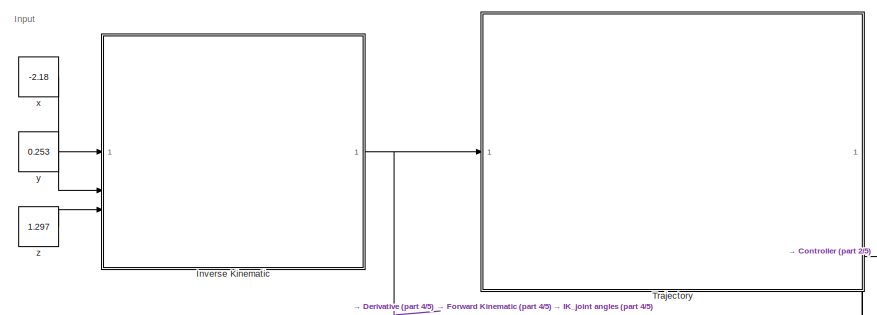
[diagram: root canvas - part 1/5, top left region]
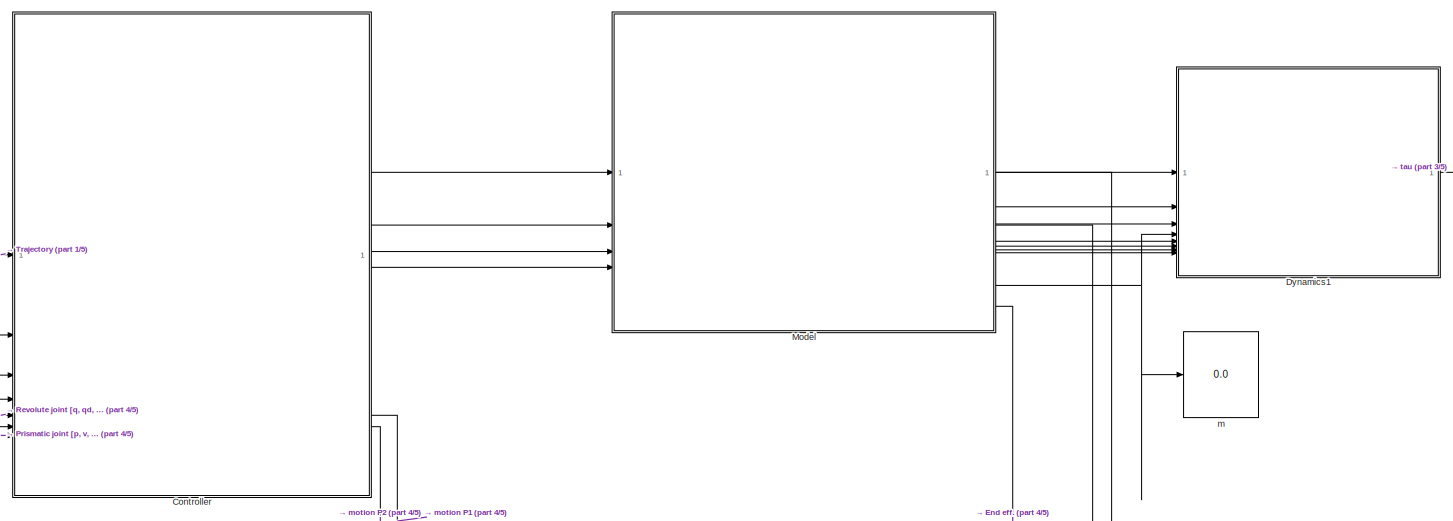
[diagram: root canvas - part 2/5, top center region]
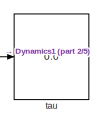
[diagram: root canvas - part 3/5, top right region]
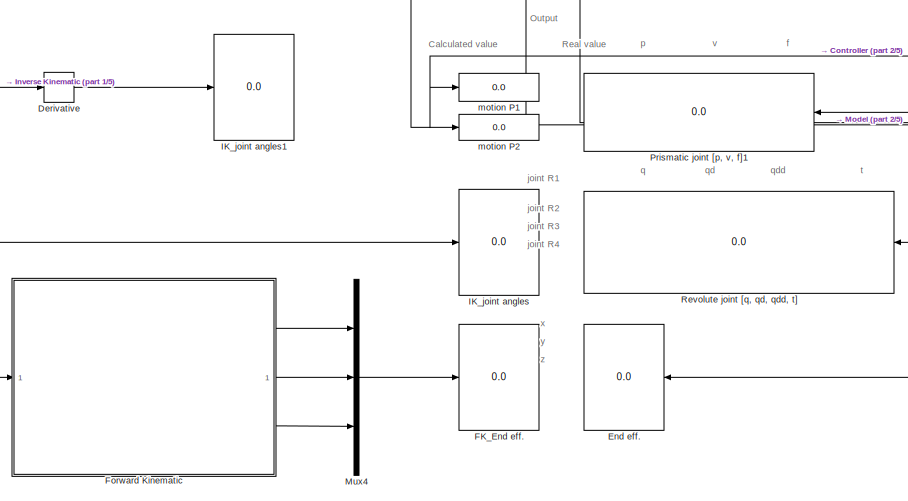
[diagram: root canvas - part 4/5, middle left region]
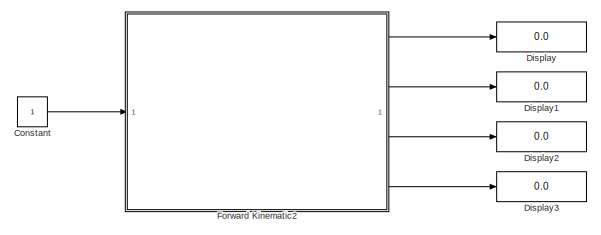
[diagram: root canvas - part 5/5, bottom center region]
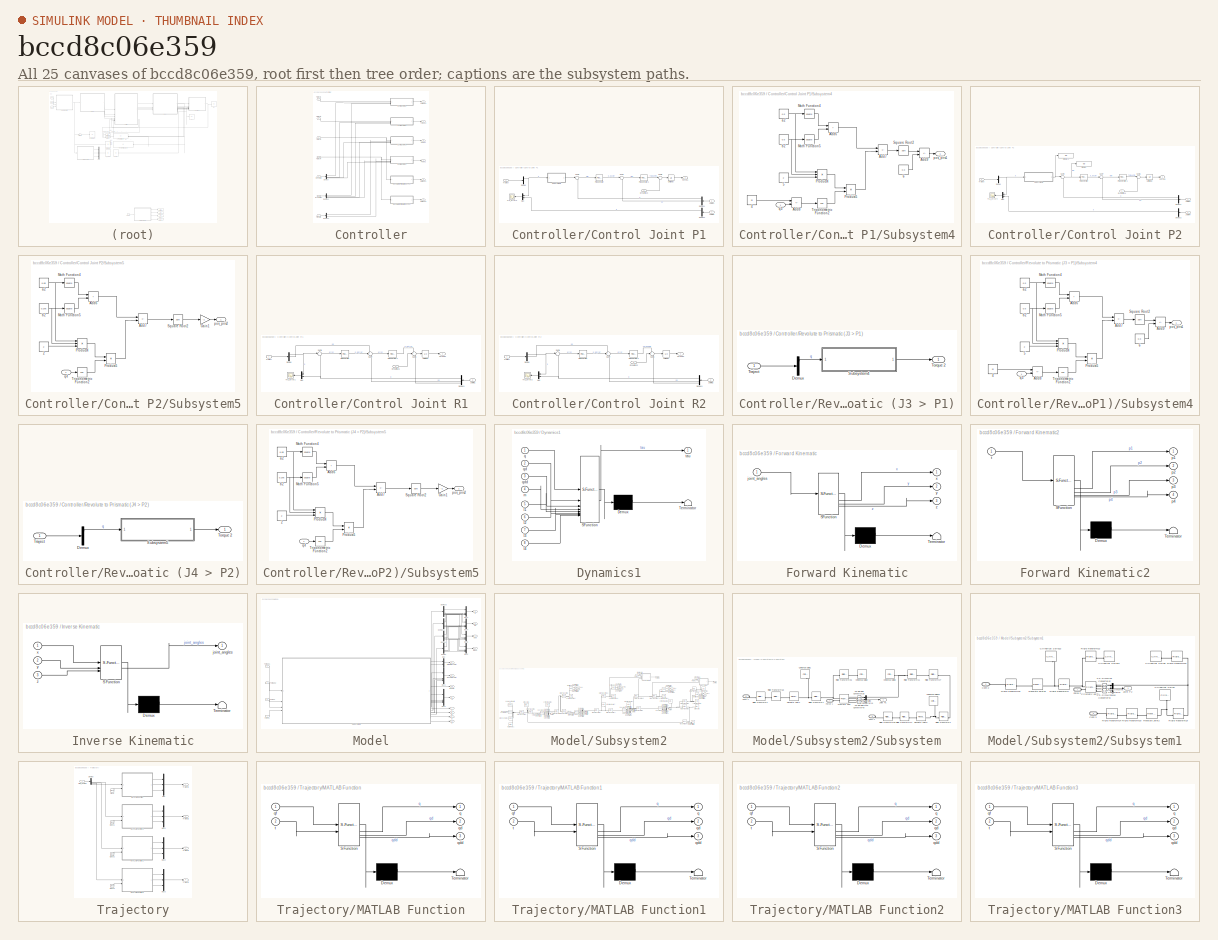
[diagram: thumbnail index - all 25 canvases of the model, root first then tree order]
MODEL slx_bccd8c06e359
KIND model
CONFIG AbsTol = auto
CONFIG EnableMultiTasking = off
CONFIG FixedStep = 0.0001
CONFIG MaxStep = auto
CONFIG MinStep = auto
CONFIG RelTol = 1e-9
CONFIG SampleTimeConstraint = Unconstrained
CONFIG SolverName = FixedStepAuto
CONFIG StartTime = 0.0
CONFIG StopTime = inf
BLOCK [Constant] Constant
  Commented = on
BLOCK [SubSystem] Controller
BLOCK [SubSystem] Controller/Control Joint P1
BLOCK [Demux] Controller/Control Joint P1/Demux
  Outputs = 3
BLOCK [Demux] Controller/Control Joint P1/Demux1
  NameLocation = top
  Outputs = 3
BLOCK [Demux] Controller/Control Joint P1/Demux2
  NameLocation = top
BLOCK [Inport] Controller/Control Joint P1/Dynamic J3
  Port = 3
BLOCK [Outport] Controller/Control Joint P1/Force 1
BLOCK [Inport] Controller/Control Joint P1/Joint P1
  Port = 2
BLOCK [Inport] Controller/Control Joint P1/Joint R3
  Port = 4
BLOCK [Mux] Controller/Control Joint P1/Mux
  DisplayOption = bar
  Inputs = 2
  NameLocation = top
BLOCK [Reference] Controller/Control Joint P1/PID Controller  REF=slpidlib/PID Controller
  LibrarySourceBlock = simulink/Continuous/PID Controller
  SourceBlock = slpidlib/PID Controller
  SourceType = PID 1dof
BLOCK [Reference] Controller/Control Joint P1/PID Controller1  REF=slpidlib/PID Controller
  LibrarySourceBlock = simulink/Continuous/PID Controller
  SourceBlock = slpidlib/PID Controller
  SourceType = PID 1dof
BLOCK [SubSystem] Controller/Control Joint P1/Subsystem4
BLOCK [Constant] Controller/Control Joint P1/Subsystem4/4
  Value = pi
BLOCK [Constant] Controller/Control Joint P1/Subsystem4/5
  Value = 2
BLOCK [Constant] Controller/Control Joint P1/Subsystem4/6
  Value = 0.3
BLOCK [Sum] Controller/Control Joint P1/Subsystem4/Add6
  IconShape = rectangular
BLOCK [Sum] Controller/Control Joint P1/Subsystem4/Add7
  IconShape = rectangular
  Inputs = +-
BLOCK [Sum] Controller/Control Joint P1/Subsystem4/Add8
  IconShape = rectangular
  Inputs = +-
BLOCK [Sum] Controller/Control Joint P1/Subsystem4/Add9
  IconShape = rectangular
  Inputs = +-
BLOCK [Math] Controller/Control Joint P1/Subsystem4/Math Function4
  Operator = square
BLOCK [Math] Controller/Control Joint P1/Subsystem4/Math Function5
  Operator = square
BLOCK [Product] Controller/Control Joint P1/Subsystem4/Product4
  Inputs = 3
BLOCK [Product] Controller/Control Joint P1/Subsystem4/Product5
BLOCK [Sqrt] Controller/Control Joint P1/Subsystem4/Square Root2
BLOCK [Trigonometry] Controller/Control Joint P1/Subsystem4/Trigonometric Function2
  Operator = cos
BLOCK [Constant] Controller/Control Joint P1/Subsystem4/a2
  Value = 0.5
BLOCK [Constant] Controller/Control Joint P1/Subsystem4/b2
  Value = 0.5
BLOCK [Outport] Controller/Control Joint P1/Subsystem4/pos_pris1
BLOCK [Inport] Controller/Control Joint P1/Subsystem4/q3
BLOCK [Sum] Controller/Control Joint P1/Sum7
  Inputs = |+-
BLOCK [Sum] Controller/Control Joint P1/Sum8
  Inputs = |++
BLOCK [Sum] Controller/Control Joint P1/Sum9
  Inputs = |+-
BLOCK [Scope] Controller/Control Joint P1/Tra_error 3
  Floating = off
  NameLocation = top
  NumInputPorts = 1
  ScopeSpecificationString = Simulink.scopes.TimeScopeBlockCfg('CurrentConfiguration', extmgr.ConfigurationSet(extmgr.Configuration('Core','General UI',true),extmgr.Configuration('Core','Source UI',true),extmgr.Configuration('Sources','WiredSimulink',true,'DataLoggingVariableName','ScopeData3'),extmgr.Configuration('Visuals','Time Domain',true,'SerializedDisplays',{struct('MinYLimReal','-0.2503','MaxYLimReal','2.25271','YLabe...<+1561ch>
BLOCK [Inport] Controller/Control Joint P1/Traject
BLOCK [UnitDelay] Controller/Control Joint P1/Unit Delay
  HasFrameUpgradeWarning = on
  SampleTime = -1
BLOCK [SubSystem] Controller/Control Joint P2
BLOCK [Demux] Controller/Control Joint P2/Demux
  Outputs = 3
BLOCK [Demux] Controller/Control Joint P2/Demux1
  NameLocation = top
  Outputs = 3
BLOCK [Demux] Controller/Control Joint P2/Demux2
  NameLocation = top
BLOCK [Display] Controller/Control Joint P2/Display
  Decimation = 1
BLOCK [Display] Controller/Control Joint P2/Display1
  Decimation = 1
BLOCK [Inport] Controller/Control Joint P2/Dynamic J4
  Port = 3
BLOCK [Outport] Controller/Control Joint P2/Force 2
BLOCK [Inport] Controller/Control Joint P2/Joint P2
  Port = 2
BLOCK [Inport] Controller/Control Joint P2/Joint R4
  Port = 4
BLOCK [Mux] Controller/Control Joint P2/Mux
  DisplayOption = bar
  Inputs = 2
  NameLocation = top
BLOCK [Reference] Controller/Control Joint P2/PID Controller  REF=slpidlib/PID Controller
  LibrarySourceBlock = simulink/Continuous/PID Controller
  SourceBlock = slpidlib/PID Controller
  SourceType = PID 1dof
BLOCK [Reference] Controller/Control Joint P2/PID Controller1  REF=slpidlib/PID Controller
  LibrarySourceBlock = simulink/Continuous/PID Controller
  SourceBlock = slpidlib/PID Controller
  SourceType = PID 1dof
BLOCK [SubSystem] Controller/Control Joint P2/Subsystem5
BLOCK [Constant] Controller/Control Joint P2/Subsystem5/2
  Value = 2
BLOCK [Sum] Controller/Control Joint P2/Subsystem5/Add6
  IconShape = rectangular
BLOCK [Sum] Controller/Control Joint P2/Subsystem5/Add7
  IconShape = rectangular
  Inputs = +-
BLOCK [Gain] Controller/Control Joint P2/Subsystem5/Gain1
  Gain = -1
BLOCK [Math] Controller/Control Joint P2/Subsystem5/Math Function4
  Operator = square
BLOCK [Math] Controller/Control Joint P2/Subsystem5/Math Function5
  Operator = square
BLOCK [Product] Controller/Control Joint P2/Subsystem5/Product4
  Inputs = 3
BLOCK [Product] Controller/Control Joint P2/Subsystem5/Product5
BLOCK [Sqrt] Controller/Control Joint P2/Subsystem5/Square Root2
BLOCK [Trigonometry] Controller/Control Joint P2/Subsystem5/Trigonometric Function2
  Operator = cos
BLOCK [Constant] Controller/Control Joint P2/Subsystem5/a2
  Value = 0.65
BLOCK [Constant] Controller/Control Joint P2/Subsystem5/b2
  Value = 0.275
BLOCK [Outport] Controller/Control Joint P2/Subsystem5/pos_pris2
BLOCK [Inport] Controller/Control Joint P2/Subsystem5/q4
BLOCK [Sum] Controller/Control Joint P2/Sum7
  Inputs = ++-
BLOCK [Sum] Controller/Control Joint P2/Sum8
  Inputs = |++
BLOCK [Sum] Controller/Control Joint P2/Sum9
  Inputs = |+-
BLOCK [Scope] Controller/Control Joint P2/Tra_error 4
  Floating = off
  NameLocation = top
  NumInputPorts = 1
  ScopeSpecificationString = Simulink.scopes.TimeScopeBlockCfg('CurrentConfiguration', extmgr.ConfigurationSet(extmgr.Configuration('Core','General UI',true),extmgr.Configuration('Core','Source UI',true),extmgr.Configuration('Sources','WiredSimulink',true,'DataLoggingVariableName','ScopeData4'),extmgr.Configuration('Visuals','Time Domain',true,'SerializedDisplays',{struct('MinYLimReal','-0.19405','MaxYLimReal','1.74648','YLab...<+1561ch>
BLOCK [Inport] Controller/Control Joint P2/Traject
BLOCK [UnitDelay] Controller/Control Joint P2/Unit Delay
  HasFrameUpgradeWarning = on
  SampleTime = -1
BLOCK [SubSystem] Controller/Control Joint R1
BLOCK [Demux] Controller/Control Joint R1/Demux
  Outputs = 3
BLOCK [Demux] Controller/Control Joint R1/Demux1
  NameLocation = top
BLOCK [Inport] Controller/Control Joint R1/Dynamic J1
  Port = 3
BLOCK [Inport] Controller/Control Joint R1/Joint R1
  Port = 2
BLOCK [Mux] Controller/Control Joint R1/Mux
  DisplayOption = bar
  Inputs = 2
  NameLocation = top
BLOCK [Reference] Controller/Control Joint R1/PID Controller  REF=slpidlib/PID Controller
  LibrarySourceBlock = simulink/Continuous/PID Controller
  SourceBlock = slpidlib/PID Controller
  SourceType = PID 1dof
BLOCK [Reference] Controller/Control Joint R1/PID Controller1  REF=slpidlib/PID Controller
  LibrarySourceBlock = simulink/Continuous/PID Controller
  SourceBlock = slpidlib/PID Controller
  SourceType = PID 1dof
BLOCK [Sum] Controller/Control Joint R1/Sum7
  Inputs = ++-
BLOCK [Sum] Controller/Control Joint R1/Sum8
  Inputs = ++-
BLOCK [Sum] Controller/Control Joint R1/Sum9
  Inputs = |+-
BLOCK [Outport] Controller/Control Joint R1/Torque 1
BLOCK [Scope] Controller/Control Joint R1/Tra_error 1
  Floating = off
  NameLocation = top
  NumInputPorts = 1
  ScopeSpecificationString = Simulink.scopes.TimeScopeBlockCfg('CurrentConfiguration', extmgr.ConfigurationSet(extmgr.Configuration('Core','General UI',true),extmgr.Configuration('Core','Source UI',true),extmgr.Configuration('Sources','WiredSimulink',true,'DataLoggingVariableName','ScopeData1'),extmgr.Configuration('Visuals','Time Domain',true,'SerializedDisplays',{struct('MinYLimReal','0.48839','MaxYLimReal','0.60451','YLabe...<+1561ch>
BLOCK [Inport] Controller/Control Joint R1/Traject
BLOCK [UnitDelay] Controller/Control Joint R1/Unit Delay
  HasFrameUpgradeWarning = on
  SampleTime = -1
BLOCK [SubSystem] Controller/Control Joint R2
BLOCK [Demux] Controller/Control Joint R2/Demux
  Outputs = 3
BLOCK [Demux] Controller/Control Joint R2/Demux1
  NameLocation = top
BLOCK [Inport] Controller/Control Joint R2/Dynamic J2
  Port = 3
BLOCK [Inport] Controller/Control Joint R2/Joint R2
  Port = 2
BLOCK [Mux] Controller/Control Joint R2/Mux
  DisplayOption = bar
  Inputs = 2
  NameLocation = top
BLOCK [Reference] Controller/Control Joint R2/PID Controller  REF=slpidlib/PID Controller
  LibrarySourceBlock = simulink/Continuous/PID Controller
  SourceBlock = slpidlib/PID Controller
  SourceType = PID 1dof
BLOCK [Reference] Controller/Control Joint R2/PID Controller1  REF=slpidlib/PID Controller
  LibrarySourceBlock = simulink/Continuous/PID Controller
  SourceBlock = slpidlib/PID Controller
  SourceType = PID 1dof
BLOCK [Sum] Controller/Control Joint R2/Sum7
  Inputs = ++-
BLOCK [Sum] Controller/Control Joint R2/Sum8
  Inputs = ++-
BLOCK [Sum] Controller/Control Joint R2/Sum9
  Inputs = |+-
BLOCK [Outport] Controller/Control Joint R2/Torque 2
BLOCK [Scope] Controller/Control Joint R2/Tra_error 2
  Floating = off
  NameLocation = top
  NumInputPorts = 1
  ScopeSpecificationString = Simulink.scopes.TimeScopeBlockCfg('CurrentConfiguration', extmgr.ConfigurationSet(extmgr.Configuration('Core','General UI',true),extmgr.Configuration('Core','Source UI',true),extmgr.Configuration('Sources','WiredSimulink',true,'DataLoggingVariableName','ScopeData2'),extmgr.Configuration('Visuals','Time Domain',true,'SerializedDisplays',{struct('MinYLimReal','0.23257','MaxYLimReal','0.3001','YLabel...<+1556ch>
BLOCK [Inport] Controller/Control Joint R2/Traject
BLOCK [UnitDelay] Controller/Control Joint R2/Unit Delay
  HasFrameUpgradeWarning = on
  SampleTime = -1
BLOCK [Demux] Controller/Demux
BLOCK [Demux] Controller/Demux1
BLOCK [Demux] Controller/Demux2
  Outputs = 2
BLOCK [Inport] Controller/Dynamics
  Port = 6
BLOCK [Outport] Controller/Force 1
  Port = 3
BLOCK [Outport] Controller/Force 2
  Port = 4
BLOCK [Inport] Controller/Prismatic
  Port = 7
BLOCK [Inport] Controller/Revolute
  Port = 5
BLOCK [SubSystem] Controller/Revolute to Prismatic (J3 > P1)
BLOCK [Demux] Controller/Revolute to Prismatic (J3 > P1)/Demux
  Outputs = 3
BLOCK [SubSystem] Controller/Revolute to Prismatic (J3 > P1)/Subsystem4
BLOCK [Constant] Controller/Revolute to Prismatic (J3 > P1)/Subsystem4/4
  Value = pi
BLOCK [Constant] Controller/Revolute to Prismatic (J3 > P1)/Subsystem4/5
  Value = 2
BLOCK [Constant] Controller/Revolute to Prismatic (J3 > P1)/Subsystem4/6
  Value = 0.3
BLOCK [Sum] Controller/Revolute to Prismatic (J3 > P1)/Subsystem4/Add6
  IconShape = rectangular
BLOCK [Sum] Controller/Revolute to Prismatic (J3 > P1)/Subsystem4/Add7
  IconShape = rectangular
  Inputs = +-
BLOCK [Sum] Controller/Revolute to Prismatic (J3 > P1)/Subsystem4/Add8
  IconShape = rectangular
  Inputs = +-
BLOCK [Sum] Controller/Revolute to Prismatic (J3 > P1)/Subsystem4/Add9
  IconShape = rectangular
  Inputs = +-
BLOCK [Math] Controller/Revolute to Prismatic (J3 > P1)/Subsystem4/Math Function4
  Operator = square
BLOCK [Math] Controller/Revolute to Prismatic (J3 > P1)/Subsystem4/Math Function5
  Operator = square
BLOCK [Product] Controller/Revolute to Prismatic (J3 > P1)/Subsystem4/Product4
  Inputs = 3
BLOCK [Product] Controller/Revolute to Prismatic (J3 > P1)/Subsystem4/Product5
BLOCK [Sqrt] Controller/Revolute to Prismatic (J3 > P1)/Subsystem4/Square Root2
BLOCK [Trigonometry] Controller/Revolute to Prismatic (J3 > P1)/Subsystem4/Trigonometric Function2
  Operator = cos
BLOCK [Constant] Controller/Revolute to Prismatic (J3 > P1)/Subsystem4/a2
  Value = 0.5
BLOCK [Constant] Controller/Revolute to Prismatic (J3 > P1)/Subsystem4/b2
  Value = 0.5
BLOCK [Outport] Controller/Revolute to Prismatic (J3 > P1)/Subsystem4/pos_pris1
BLOCK [Inport] Controller/Revolute to Prismatic (J3 > P1)/Subsystem4/q3
BLOCK [Outport] Controller/Revolute to Prismatic (J3 > P1)/Torque 2
BLOCK [Inport] Controller/Revolute to Prismatic (J3 > P1)/Traject
BLOCK [SubSystem] Controller/Revolute to Prismatic (J4 > P2)
BLOCK [Demux] Controller/Revolute to Prismatic (J4 > P2)/Demux
  Outputs = 3
BLOCK [SubSystem] Controller/Revolute to Prismatic (J4 > P2)/Subsystem5
BLOCK [Constant] Controller/Revolute to Prismatic (J4 > P2)/Subsystem5/2
  Value = 2
BLOCK [Sum] Controller/Revolute to Prismatic (J4 > P2)/Subsystem5/Add6
  IconShape = rectangular
BLOCK [Sum] Controller/Revolute to Prismatic (J4 > P2)/Subsystem5/Add7
  IconShape = rectangular
  Inputs = +-
BLOCK [Gain] Controller/Revolute to Prismatic (J4 > P2)/Subsystem5/Gain1
  Gain = -1
BLOCK [Math] Controller/Revolute to Prismatic (J4 > P2)/Subsystem5/Math Function4
  Operator = square
BLOCK [Math] Controller/Revolute to Prismatic (J4 > P2)/Subsystem5/Math Function5
  Operator = square
BLOCK [Product] Controller/Revolute to Prismatic (J4 > P2)/Subsystem5/Product4
  Inputs = 3
BLOCK [Product] Controller/Revolute to Prismatic (J4 > P2)/Subsystem5/Product5
BLOCK [Sqrt] Controller/Revolute to Prismatic (J4 > P2)/Subsystem5/Square Root2
BLOCK [Trigonometry] Controller/Revolute to Prismatic (J4 > P2)/Subsystem5/Trigonometric Function2
  Operator = cos
BLOCK [Constant] Controller/Revolute to Prismatic (J4 > P2)/Subsystem5/a2
  Value = 0.65
BLOCK [Constant] Controller/Revolute to Prismatic (J4 > P2)/Subsystem5/b2
  Value = 0.275
BLOCK [Outport] Controller/Revolute to Prismatic (J4 > P2)/Subsystem5/pos_pris2
BLOCK [Inport] Controller/Revolute to Prismatic (J4 > P2)/Subsystem5/q4
BLOCK [Outport] Controller/Revolute to Prismatic (J4 > P2)/Torque 2
BLOCK [Inport] Controller/Revolute to Prismatic (J4 > P2)/Traject
BLOCK [Outport] Controller/Torque 1
BLOCK [Outport] Controller/Torque 2
  Port = 2
BLOCK [Inport] Controller/Traject 1
BLOCK [Inport] Controller/Traject 2
  Port = 2
BLOCK [Inport] Controller/Traject 3
  Port = 3
BLOCK [Inport] Controller/Traject 4
  Port = 4
BLOCK [Outport] Controller/motion P1
  Port = 5
BLOCK [Outport] Controller/motion P2
  Port = 6
BLOCK [Derivative] Derivative
BLOCK [Display] Display
  Commented = on
  Decimation = 1
BLOCK [Display] Display1
  Commented = on
  Decimation = 1
BLOCK [Display] Display2
  Commented = on
  Decimation = 1
BLOCK [Display] Display3
  Commented = on
  Decimation = 1
BLOCK [SubSystem] Dynamics1
  ErrorFcn = Stateflow.Translate.translate
  PermitHierarchicalResolution = ExplicitOnly
  SFBlockType = MATLAB Function
  TreatAsAtomicUnit = on
BLOCK [Demux] Dynamics1/ Demux 
  Outputs = 1
BLOCK [S-Function] Dynamics1/ SFunction 
  EnableBusSupport = on
  FunctionName = sf_sfun
  PortCounts = [8 2]
  SFcnIsStateOwnerBlock = off
  SFunctionDeploymentMode = off
  Tag = Stateflow S-Function 1
BLOCK [Terminator] Dynamics1/ Terminator 
BLOCK [Inport] Dynamics1/I1
  Port = 5
BLOCK [Inport] Dynamics1/I2
  Port = 6
BLOCK [Inport] Dynamics1/I3
  Port = 7
BLOCK [Inport] Dynamics1/I4
  Port = 8
BLOCK [Inport] Dynamics1/m
  Port = 4
BLOCK [Inport] Dynamics1/q
BLOCK [Inport] Dynamics1/qd
  Port = 2
BLOCK [Inport] Dynamics1/qdd
  Port = 3
BLOCK [Outport] Dynamics1/tau
BLOCK [Display] End eff.
  Decimation = 1
BLOCK [Display] FK_End eff.
  Decimation = 1
BLOCK [SubSystem] Forward Kinematic
  ErrorFcn = Stateflow.Translate.translate
  PermitHierarchicalResolution = ExplicitOnly
  SFBlockType = MATLAB Function
  TreatAsAtomicUnit = on
BLOCK [Demux] Forward Kinematic/ Demux 
  Outputs = 1
BLOCK [S-Function] Forward Kinematic/ SFunction 
  EnableBusSupport = on
  FunctionName = sf_sfun
  PortCounts = [1 4]
  SFcnIsStateOwnerBlock = off
  SFunctionDeploymentMode = off
  Tag = Stateflow S-Function 3
BLOCK [Terminator] Forward Kinematic/ Terminator 
BLOCK [Inport] Forward Kinematic/joint_angles
BLOCK [Outport] Forward Kinematic/x
BLOCK [Outport] Forward Kinematic/y
  Port = 2
BLOCK [Outport] Forward Kinematic/z
  Port = 3
BLOCK [SubSystem] Forward Kinematic2
  Commented = on
  ErrorFcn = Stateflow.Translate.translate
  PermitHierarchicalResolution = ExplicitOnly
  SFBlockType = MATLAB Function
  TreatAsAtomicUnit = on
BLOCK [Demux] Forward Kinematic2/ Demux 
  Outputs = 1
BLOCK [S-Function] Forward Kinematic2/ SFunction 
  EnableBusSupport = on
  FunctionName = sf_sfun
  PortCounts = [1 5]
  SFcnIsStateOwnerBlock = off
  SFunctionDeploymentMode = off
  Tag = Stateflow S-Function 11
BLOCK [Terminator] Forward Kinematic2/ Terminator 
BLOCK [Outport] Forward Kinematic2/p1
BLOCK [Outport] Forward Kinematic2/p2
  Port = 2
BLOCK [Outport] Forward Kinematic2/p3
  Port = 3
BLOCK [Outport] Forward Kinematic2/p4
  Port = 4
BLOCK [Inport] Forward Kinematic2/t
BLOCK [Display] IK_joint angles
  Decimation = 1
BLOCK [Display] IK_joint angles1
  Decimation = 1
BLOCK [SubSystem] Inverse Kinematic
  ErrorFcn = Stateflow.Translate.translate
  PermitHierarchicalResolution = ExplicitOnly
  SFBlockType = MATLAB Function
  TreatAsAtomicUnit = on
BLOCK [Demux] Inverse Kinematic/ Demux 
  Outputs = 1
BLOCK [S-Function] Inverse Kinematic/ SFunction 
  EnableBusSupport = on
  FunctionName = sf_sfun
  PortCounts = [3 2]
  SFcnIsStateOwnerBlock = off
  SFunctionDeploymentMode = off
  Tag = Stateflow S-Function 6
BLOCK [Terminator] Inverse Kinematic/ Terminator 
BLOCK [Outport] Inverse Kinematic/joint_angles
BLOCK [Inport] Inverse Kinematic/x
BLOCK [Inport] Inverse Kinematic/y
  Port = 2
BLOCK [Inport] Inverse Kinematic/z
  Port = 3
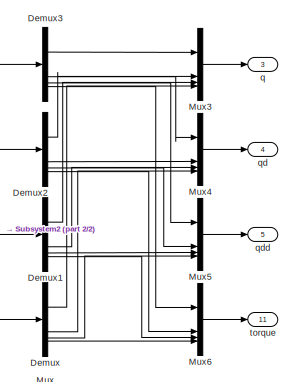
[diagram: Model - part 1/2, top right region]
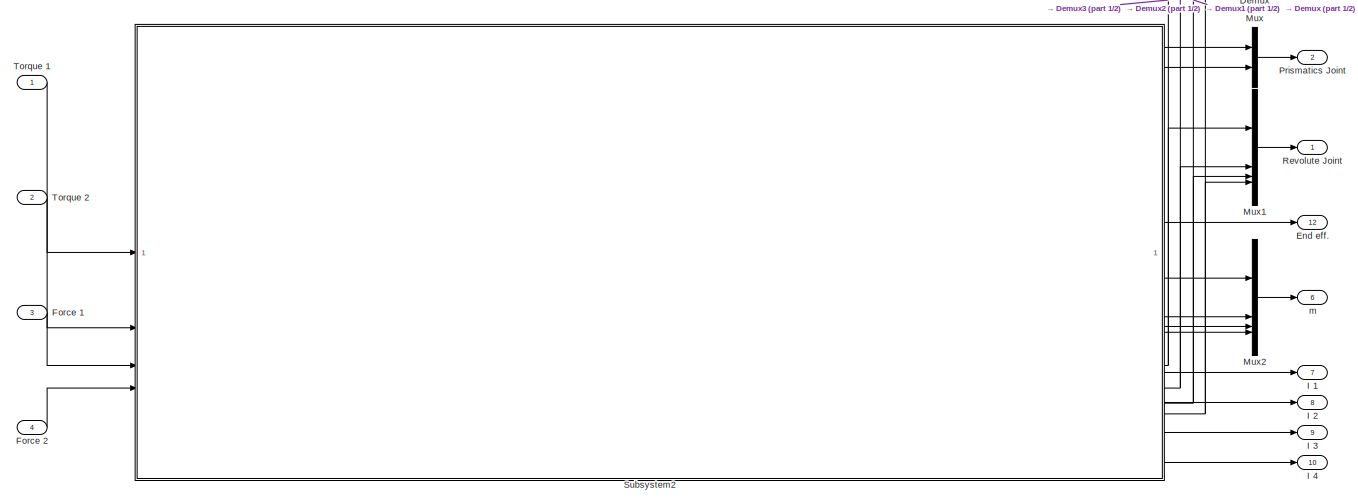
[diagram: Model - part 2/2, full width, bottom band]
BLOCK [SubSystem] Model
BLOCK [Demux] Model/Demux
BLOCK [Demux] Model/Demux1
BLOCK [Demux] Model/Demux2
BLOCK [Demux] Model/Demux3
BLOCK [Outport] Model/End eff.
  Port = 12
BLOCK [Inport] Model/Force 1
  Port = 3
BLOCK [Inport] Model/Force 2
  Port = 4
BLOCK [Outport] Model/I 1
  Port = 7
BLOCK [Outport] Model/I 2
  Port = 8
BLOCK [Outport] Model/I 3
  Port = 9
BLOCK [Outport] Model/I 4
  Port = 10
BLOCK [Mux] Model/Mux
  DisplayOption = bar
  Inputs = 2
BLOCK [Mux] Model/Mux1
  DisplayOption = bar
BLOCK [Mux] Model/Mux2
  DisplayOption = bar
BLOCK [Mux] Model/Mux3
  DisplayOption = bar
BLOCK [Mux] Model/Mux4
  DisplayOption = bar
BLOCK [Mux] Model/Mux5
  DisplayOption = bar
BLOCK [Mux] Model/Mux6
  DisplayOption = bar
BLOCK [Outport] Model/Prismatics Joint
  Port = 2
BLOCK [Outport] Model/Revolute Joint
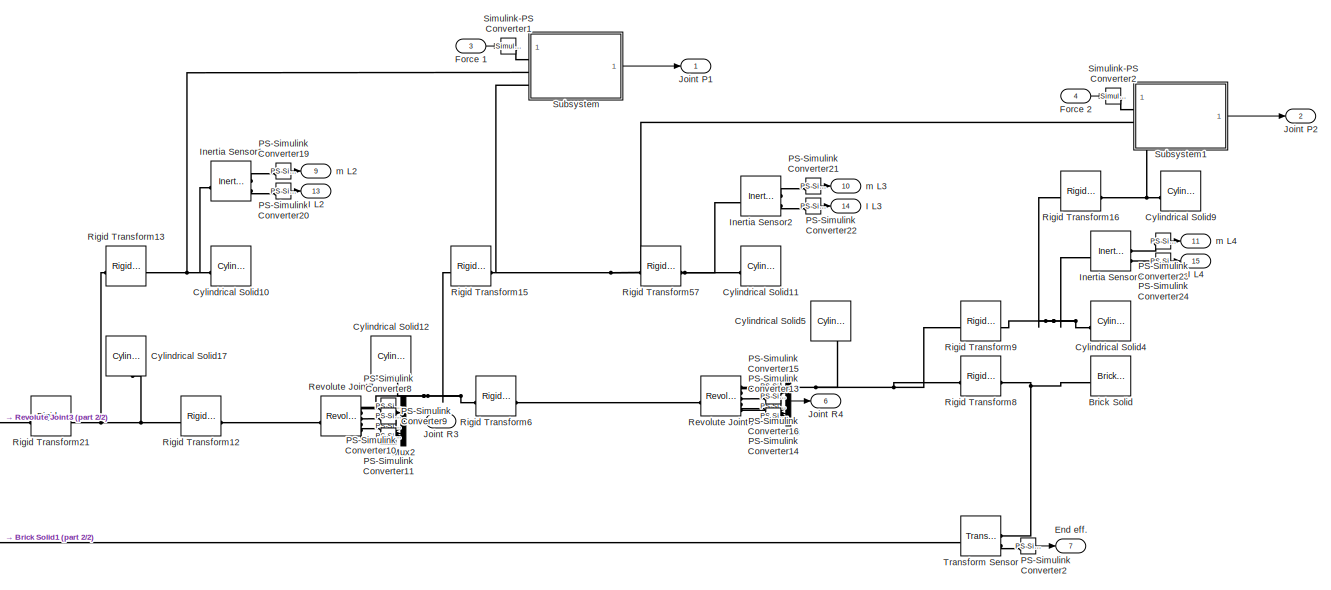
[diagram: Model/Subsystem2 - part 1/2, right side, full height]
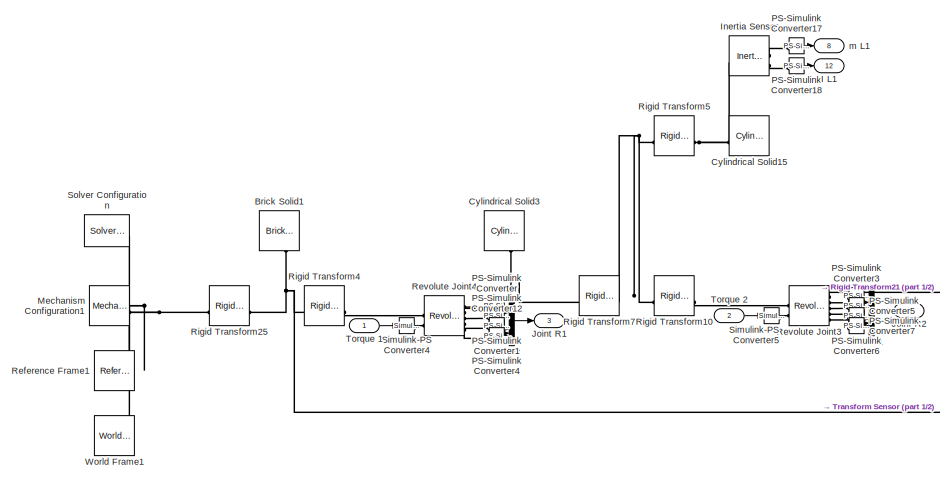
[diagram: Model/Subsystem2 - part 2/2, left side, full height]
BLOCK [SubSystem] Model/Subsystem2
BLOCK [Reference] Model/Subsystem2/Brick Solid  REF=sm_lib/Body Elements/Brick Solid
  NameLocation = top
  SourceBlock = sm_lib/Body Elements/Brick Solid
  SourceType = Brick Solid
BLOCK [Reference] Model/Subsystem2/Brick Solid1  REF=sm_lib/Body Elements/Brick Solid
  NameLocation = left
  SourceBlock = sm_lib/Body Elements/Brick Solid
  SourceType = Brick Solid
BLOCK [Reference] Model/Subsystem2/Cylindrical Solid10  REF=sm_lib/Body Elements/Cylindrical Solid
  NameLocation = top
  SourceBlock = sm_lib/Body Elements/Cylindrical Solid
  SourceType = Cylindrical Solid
BLOCK [Reference] Model/Subsystem2/Cylindrical Solid11  REF=sm_lib/Body Elements/Cylindrical Solid
  NameLocation = top
  SourceBlock = sm_lib/Body Elements/Cylindrical Solid
  SourceType = Cylindrical Solid
BLOCK [Reference] Model/Subsystem2/Cylindrical Solid12  REF=sm_lib/Body Elements/Cylindrical Solid
  NameLocation = left
  SourceBlock = sm_lib/Body Elements/Cylindrical Solid
  SourceType = Cylindrical Solid
BLOCK [Reference] Model/Subsystem2/Cylindrical Solid15  REF=sm_lib/Body Elements/Cylindrical Solid
  NameLocation = top
  SourceBlock = sm_lib/Body Elements/Cylindrical Solid
  SourceType = Cylindrical Solid
BLOCK [Reference] Model/Subsystem2/Cylindrical Solid17  REF=sm_lib/Body Elements/Cylindrical Solid
  NameLocation = left
  SourceBlock = sm_lib/Body Elements/Cylindrical Solid
  SourceType = Cylindrical Solid
BLOCK [Reference] Model/Subsystem2/Cylindrical Solid3  REF=sm_lib/Body Elements/Cylindrical Solid
  NameLocation = left
  SourceBlock = sm_lib/Body Elements/Cylindrical Solid
  SourceType = Cylindrical Solid
BLOCK [Reference] Model/Subsystem2/Cylindrical Solid4  REF=sm_lib/Body Elements/Cylindrical Solid
  NameLocation = top
  SourceBlock = sm_lib/Body Elements/Cylindrical Solid
  SourceType = Cylindrical Solid
BLOCK [Reference] Model/Subsystem2/Cylindrical Solid5  REF=sm_lib/Body Elements/Cylindrical Solid
  NameLocation = left
  SourceBlock = sm_lib/Body Elements/Cylindrical Solid
  SourceType = Cylindrical Solid
BLOCK [Reference] Model/Subsystem2/Cylindrical Solid9  REF=sm_lib/Body Elements/Cylindrical Solid
  NameLocation = top
  SourceBlock = sm_lib/Body Elements/Cylindrical Solid
  SourceType = Cylindrical Solid
BLOCK [Outport] Model/Subsystem2/End eff.
  Port = 7
BLOCK [Inport] Model/Subsystem2/Force 1
  Port = 3
BLOCK [Inport] Model/Subsystem2/Force 2
  Port = 4
BLOCK [Outport] Model/Subsystem2/I L1
  NameLocation = right
  Port = 12
BLOCK [Outport] Model/Subsystem2/I L2
  NameLocation = right
  Port = 13
BLOCK [Outport] Model/Subsystem2/I L3
  NameLocation = right
  Port = 14
BLOCK [Outport] Model/Subsystem2/I L4
  NameLocation = right
  Port = 15
BLOCK [Reference] Model/Subsystem2/Inertia Sensor  REF=sm_lib/Body Elements/Inertia Sensor
  SourceBlock = sm_lib/Body Elements/Inertia Sensor
  SourceType = Inertia Sensor
BLOCK [Reference] Model/Subsystem2/Inertia Sensor1  REF=sm_lib/Body Elements/Inertia Sensor
  SourceBlock = sm_lib/Body Elements/Inertia Sensor
  SourceType = Inertia Sensor
BLOCK [Reference] Model/Subsystem2/Inertia Sensor2  REF=sm_lib/Body Elements/Inertia Sensor
  SourceBlock = sm_lib/Body Elements/Inertia Sensor
  SourceType = Inertia Sensor
BLOCK [Reference] Model/Subsystem2/Inertia Sensor3  REF=sm_lib/Body Elements/Inertia Sensor
  SourceBlock = sm_lib/Body Elements/Inertia Sensor
  SourceType = Inertia Sensor
BLOCK [Outport] Model/Subsystem2/Joint P1
BLOCK [Outport] Model/Subsystem2/Joint P2
  Port = 2
BLOCK [Outport] Model/Subsystem2/Joint R1
  Port = 3
BLOCK [Outport] Model/Subsystem2/Joint R2
  Port = 4
BLOCK [Outport] Model/Subsystem2/Joint R3
  Port = 5
BLOCK [Outport] Model/Subsystem2/Joint R4
  Port = 6
BLOCK [Reference] Model/Subsystem2/Mechanism Configuration1  REF=sm_lib/Utilities/Mechanism
Configuration
  SourceBlock = sm_lib/Utilities/Mechanism\nConfiguration
  SourceType = Mechanism\nConfiguration
BLOCK [Mux] Model/Subsystem2/Mux
  DisplayOption = bar
BLOCK [Mux] Model/Subsystem2/Mux1
  DisplayOption = bar
BLOCK [Mux] Model/Subsystem2/Mux2
  DisplayOption = bar
BLOCK [Mux] Model/Subsystem2/Mux3
  DisplayOption = bar
BLOCK [Reference] Model/Subsystem2/PS-Simulink Converter  REF=nesl_utility/PS-Simulink
Converter
  SourceBlock = nesl_utility/PS-Simulink\nConverter
  SourceType = PS-Simulink\nConverter
BLOCK [Reference] Model/Subsystem2/PS-Simulink Converter1  REF=nesl_utility/PS-Simulink
Converter
  SourceBlock = nesl_utility/PS-Simulink\nConverter
  SourceType = PS-Simulink\nConverter
BLOCK [Reference] Model/Subsystem2/PS-Simulink Converter10  REF=nesl_utility/PS-Simulink
Converter
  SourceBlock = nesl_utility/PS-Simulink\nConverter
  SourceType = PS-Simulink\nConverter
BLOCK [Reference] Model/Subsystem2/PS-Simulink Converter11  REF=nesl_utility/PS-Simulink
Converter
  SourceBlock = nesl_utility/PS-Simulink\nConverter
  SourceType = PS-Simulink\nConverter
BLOCK [Reference] Model/Subsystem2/PS-Simulink Converter12  REF=nesl_utility/PS-Simulink
Converter
  SourceBlock = nesl_utility/PS-Simulink\nConverter
  SourceType = PS-Simulink\nConverter
BLOCK [Reference] Model/Subsystem2/PS-Simulink Converter13  REF=nesl_utility/PS-Simulink
Converter
  SourceBlock = nesl_utility/PS-Simulink\nConverter
  SourceType = PS-Simulink\nConverter
BLOCK [Reference] Model/Subsystem2/PS-Simulink Converter14  REF=nesl_utility/PS-Simulink
Converter
  SourceBlock = nesl_utility/PS-Simulink\nConverter
  SourceType = PS-Simulink\nConverter
BLOCK [Reference] Model/Subsystem2/PS-Simulink Converter15  REF=nesl_utility/PS-Simulink
Converter
  SourceBlock = nesl_utility/PS-Simulink\nConverter
  SourceType = PS-Simulink\nConverter
BLOCK [Reference] Model/Subsystem2/PS-Simulink Converter16  REF=nesl_utility/PS-Simulink
Converter
  SourceBlock = nesl_utility/PS-Simulink\nConverter
  SourceType = PS-Simulink\nConverter
BLOCK [Reference] Model/Subsystem2/PS-Simulink Converter17  REF=nesl_utility/PS-Simulink
Converter
  SourceBlock = nesl_utility/PS-Simulink\nConverter
  SourceType = PS-Simulink\nConverter
BLOCK [Reference] Model/Subsystem2/PS-Simulink Converter18  REF=nesl_utility/PS-Simulink
Converter
  SourceBlock = nesl_utility/PS-Simulink\nConverter
  SourceType = PS-Simulink\nConverter
BLOCK [Reference] Model/Subsystem2/PS-Simulink Converter19  REF=nesl_utility/PS-Simulink
Converter
  SourceBlock = nesl_utility/PS-Simulink\nConverter
  SourceType = PS-Simulink\nConverter
BLOCK [Reference] Model/Subsystem2/PS-Simulink Converter2  REF=nesl_utility/PS-Simulink
Converter
  SourceBlock = nesl_utility/PS-Simulink\nConverter
  SourceType = PS-Simulink\nConverter
BLOCK [Reference] Model/Subsystem2/PS-Simulink Converter20  REF=nesl_utility/PS-Simulink
Converter
  SourceBlock = nesl_utility/PS-Simulink\nConverter
  SourceType = PS-Simulink\nConverter
BLOCK [Reference] Model/Subsystem2/PS-Simulink Converter21  REF=nesl_utility/PS-Simulink
Converter
  SourceBlock = nesl_utility/PS-Simulink\nConverter
  SourceType = PS-Simulink\nConverter
BLOCK [Reference] Model/Subsystem2/PS-Simulink Converter22  REF=nesl_utility/PS-Simulink
Converter
  SourceBlock = nesl_utility/PS-Simulink\nConverter
  SourceType = PS-Simulink\nConverter
BLOCK [Reference] Model/Subsystem2/PS-Simulink Converter23  REF=nesl_utility/PS-Simulink
Converter
  SourceBlock = nesl_utility/PS-Simulink\nConverter
  SourceType = PS-Simulink\nConverter
BLOCK [Reference] Model/Subsystem2/PS-Simulink Converter24  REF=nesl_utility/PS-Simulink
Converter
  SourceBlock = nesl_utility/PS-Simulink\nConverter
  SourceType = PS-Simulink\nConverter
BLOCK [Reference] Model/Subsystem2/PS-Simulink Converter3  REF=nesl_utility/PS-Simulink
Converter
  SourceBlock = nesl_utility/PS-Simulink\nConverter
  SourceType = PS-Simulink\nConverter
BLOCK [Reference] Model/Subsystem2/PS-Simulink Converter4  REF=nesl_utility/PS-Simulink
Converter
  SourceBlock = nesl_utility/PS-Simulink\nConverter
  SourceType = PS-Simulink\nConverter
BLOCK [Reference] Model/Subsystem2/PS-Simulink Converter5  REF=nesl_utility/PS-Simulink
Converter
  SourceBlock = nesl_utility/PS-Simulink\nConverter
  SourceType = PS-Simulink\nConverter
BLOCK [Reference] Model/Subsystem2/PS-Simulink Converter6  REF=nesl_utility/PS-Simulink
Converter
  SourceBlock = nesl_utility/PS-Simulink\nConverter
  SourceType = PS-Simulink\nConverter
BLOCK [Reference] Model/Subsystem2/PS-Simulink Converter7  REF=nesl_utility/PS-Simulink
Converter
  SourceBlock = nesl_utility/PS-Simulink\nConverter
  SourceType = PS-Simulink\nConverter
BLOCK [Reference] Model/Subsystem2/PS-Simulink Converter8  REF=nesl_utility/PS-Simulink
Converter
  SourceBlock = nesl_utility/PS-Simulink\nConverter
  SourceType = PS-Simulink\nConverter
BLOCK [Reference] Model/Subsystem2/PS-Simulink Converter9  REF=nesl_utility/PS-Simulink
Converter
  SourceBlock = nesl_utility/PS-Simulink\nConverter
  SourceType = PS-Simulink\nConverter
BLOCK [Reference] Model/Subsystem2/Reference Frame1  REF=sm_lib/Frames and
Transforms/Reference
Frame
  SourceBlock = sm_lib/Frames and\nTransforms/Reference\nFrame
  SourceType = Reference\nFrame
BLOCK [Reference] Model/Subsystem2/Revolute Joint3  REF=sm_lib/Joints/Revolute Joint
  SourceBlock = sm_lib/Joints/Revolute Joint
  SourceType = Revolute Joint
BLOCK [Reference] Model/Subsystem2/Revolute Joint4  REF=sm_lib/Joints/Revolute Joint
  SourceBlock = sm_lib/Joints/Revolute Joint
  SourceType = Revolute Joint
BLOCK [Reference] Model/Subsystem2/Revolute Joint5  REF=sm_lib/Joints/Revolute Joint
  SourceBlock = sm_lib/Joints/Revolute Joint
  SourceType = Revolute Joint
BLOCK [Reference] Model/Subsystem2/Revolute Joint7  REF=sm_lib/Joints/Revolute Joint
  SourceBlock = sm_lib/Joints/Revolute Joint
  SourceType = Revolute Joint
BLOCK [Reference] Model/Subsystem2/Rigid Transform10  REF=sm_lib/Frames and
Transforms/Rigid
Transform
  SourceBlock = sm_lib/Frames and\nTransforms/Rigid\nTransform
  SourceType = Rigid\nTransform
BLOCK [Reference] Model/Subsystem2/Rigid Transform12  REF=sm_lib/Frames and
Transforms/Rigid
Transform
  SourceBlock = sm_lib/Frames and\nTransforms/Rigid\nTransform
  SourceType = Rigid\nTransform
BLOCK [Reference] Model/Subsystem2/Rigid Transform13  REF=sm_lib/Frames and
Transforms/Rigid
Transform
  SourceBlock = sm_lib/Frames and\nTransforms/Rigid\nTransform
  SourceType = Rigid\nTransform
BLOCK [Reference] Model/Subsystem2/Rigid Transform15  REF=sm_lib/Frames and
Transforms/Rigid
Transform
  SourceBlock = sm_lib/Frames and\nTransforms/Rigid\nTransform
  SourceType = Rigid\nTransform
BLOCK [Reference] Model/Subsystem2/Rigid Transform16  REF=sm_lib/Frames and
Transforms/Rigid
Transform
  SourceBlock = sm_lib/Frames and\nTransforms/Rigid\nTransform
  SourceType = Rigid\nTransform
BLOCK [Reference] Model/Subsystem2/Rigid Transform21  REF=sm_lib/Frames and
Transforms/Rigid
Transform
  SourceBlock = sm_lib/Frames and\nTransforms/Rigid\nTransform
  SourceType = Rigid\nTransform
BLOCK [Reference] Model/Subsystem2/Rigid Transform25  REF=sm_lib/Frames and
Transforms/Rigid
Transform
  SourceBlock = sm_lib/Frames and\nTransforms/Rigid\nTransform
  SourceType = Rigid\nTransform
BLOCK [Reference] Model/Subsystem2/Rigid Transform4  REF=sm_lib/Frames and
Transforms/Rigid
Transform
  SourceBlock = sm_lib/Frames and\nTransforms/Rigid\nTransform
  SourceType = Rigid\nTransform
BLOCK [Reference] Model/Subsystem2/Rigid Transform5  REF=sm_lib/Frames and
Transforms/Rigid
Transform
  SourceBlock = sm_lib/Frames and\nTransforms/Rigid\nTransform
  SourceType = Rigid\nTransform
BLOCK [Reference] Model/Subsystem2/Rigid Transform57  REF=sm_lib/Frames and
Transforms/Rigid
Transform
  SourceBlock = sm_lib/Frames and\nTransforms/Rigid\nTransform
  SourceType = Rigid\nTransform
BLOCK [Reference] Model/Subsystem2/Rigid Transform6  REF=sm_lib/Frames and
Transforms/Rigid
Transform
  SourceBlock = sm_lib/Frames and\nTransforms/Rigid\nTransform
  SourceType = Rigid\nTransform
BLOCK [Reference] Model/Subsystem2/Rigid Transform7  REF=sm_lib/Frames and
Transforms/Rigid
Transform
  SourceBlock = sm_lib/Frames and\nTransforms/Rigid\nTransform
  SourceType = Rigid\nTransform
BLOCK [Reference] Model/Subsystem2/Rigid Transform8  REF=sm_lib/Frames and
Transforms/Rigid
Transform
  SourceBlock = sm_lib/Frames and\nTransforms/Rigid\nTransform
  SourceType = Rigid\nTransform
BLOCK [Reference] Model/Subsystem2/Rigid Transform9  REF=sm_lib/Frames and
Transforms/Rigid
Transform
  SourceBlock = sm_lib/Frames and\nTransforms/Rigid\nTransform
  SourceType = Rigid\nTransform
BLOCK [Reference] Model/Subsystem2/Simulink-PS Converter1  REF=nesl_utility/Simulink-PS
Converter
  SourceBlock = nesl_utility/Simulink-PS\nConverter
  SourceType = Simulink-PS\nConverter
BLOCK [Reference] Model/Subsystem2/Simulink-PS Converter2  REF=nesl_utility/Simulink-PS
Converter
  SourceBlock = nesl_utility/Simulink-PS\nConverter
  SourceType = Simulink-PS\nConverter
BLOCK [Reference] Model/Subsystem2/Simulink-PS Converter4  REF=nesl_utility/Simulink-PS
Converter
  SourceBlock = nesl_utility/Simulink-PS\nConverter
  SourceType = Simulink-PS\nConverter
BLOCK [Reference] Model/Subsystem2/Simulink-PS Converter5  REF=nesl_utility/Simulink-PS
Converter
  SourceBlock = nesl_utility/Simulink-PS\nConverter
  SourceType = Simulink-PS\nConverter
BLOCK [Reference] Model/Subsystem2/Solver Configuration  REF=nesl_utility/Solver
Configuration
  SourceBlock = nesl_utility/Solver\nConfiguration
  SourceType = Solver\nConfiguration
BLOCK [SubSystem] Model/Subsystem2/Subsystem
BLOCK [PMIOPort] Model/Subsystem2/Subsystem/Conn 1
  Port = 2
  Side = Left
BLOCK [PMIOPort] Model/Subsystem2/Subsystem/Conn 2
  Port = 3
  Side = Left
BLOCK [Reference] Model/Subsystem2/Subsystem/Cylindrical Solid1  REF=sm_lib/Body Elements/Cylindrical Solid
  NameLocation = left
  SourceBlock = sm_lib/Body Elements/Cylindrical Solid
  SourceType = Cylindrical Solid
BLOCK [Reference] Model/Subsystem2/Subsystem/Cylindrical Solid16  REF=sm_lib/Body Elements/Cylindrical Solid
  NameLocation = left
  SourceBlock = sm_lib/Body Elements/Cylindrical Solid
  SourceType = Cylindrical Solid
BLOCK [Reference] Model/Subsystem2/Subsystem/Cylindrical Solid2  REF=sm_lib/Body Elements/Cylindrical Solid
  NameLocation = top
  SourceBlock = sm_lib/Body Elements/Cylindrical Solid
  SourceType = Cylindrical Solid
BLOCK [Reference] Model/Subsystem2/Subsystem/Cylindrical Solid8  REF=sm_lib/Body Elements/Cylindrical Solid
  SourceBlock = sm_lib/Body Elements/Cylindrical Solid
  SourceType = Cylindrical Solid
BLOCK [PMIOPort] Model/Subsystem2/Subsystem/Force 1
  Side = Left
BLOCK [Outport] Model/Subsystem2/Subsystem/Joint P1
BLOCK [Mux] Model/Subsystem2/Subsystem/Mux9
  DisplayOption = bar
  Inputs = 3
BLOCK [Reference] Model/Subsystem2/Subsystem/PS-Simulink Converter38  REF=nesl_utility/PS-Simulink
Converter
  SourceBlock = nesl_utility/PS-Simulink\nConverter
  SourceType = PS-Simulink\nConverter
BLOCK [Reference] Model/Subsystem2/Subsystem/PS-Simulink Converter40  REF=nesl_utility/PS-Simulink
Converter
  SourceBlock = nesl_utility/PS-Simulink\nConverter
  SourceType = PS-Simulink\nConverter
BLOCK [Reference] Model/Subsystem2/Subsystem/PS-Simulink Converter41  REF=nesl_utility/PS-Simulink
Converter
  SourceBlock = nesl_utility/PS-Simulink\nConverter
  SourceType = PS-Simulink\nConverter
BLOCK [Reference] Model/Subsystem2/Subsystem/Prismatic Joint  REF=sm_lib/Joints/Prismatic
Joint
  SourceBlock = sm_lib/Joints/Prismatic\nJoint
  SourceType = Prismatic\nJoint
BLOCK [Reference] Model/Subsystem2/Subsystem/Revolute Joint1  REF=sm_lib/Joints/Revolute Joint
  SourceBlock = sm_lib/Joints/Revolute Joint
  SourceType = Revolute Joint
BLOCK [Reference] Model/Subsystem2/Subsystem/Revolute Joint6  REF=sm_lib/Joints/Revolute Joint
  SourceBlock = sm_lib/Joints/Revolute Joint
  SourceType = Revolute Joint
BLOCK [Reference] Model/Subsystem2/Subsystem/Rigid Transform1  REF=sm_lib/Frames and
Transforms/Rigid
Transform
  SourceBlock = sm_lib/Frames and\nTransforms/Rigid\nTransform
  SourceType = Rigid\nTransform
BLOCK [Reference] Model/Subsystem2/Subsystem/Rigid Transform11  REF=sm_lib/Frames and
Transforms/Rigid
Transform
  NameLocation = top
  SourceBlock = sm_lib/Frames and\nTransforms/Rigid\nTransform
  SourceType = Rigid\nTransform
BLOCK [Reference] Model/Subsystem2/Subsystem/Rigid Transform14  REF=sm_lib/Frames and
Transforms/Rigid
Transform
  SourceBlock = sm_lib/Frames and\nTransforms/Rigid\nTransform
  SourceType = Rigid\nTransform
BLOCK [Reference] Model/Subsystem2/Subsystem/Rigid Transform2  REF=sm_lib/Frames and
Transforms/Rigid
Transform
  SourceBlock = sm_lib/Frames and\nTransforms/Rigid\nTransform
  SourceType = Rigid\nTransform
BLOCK [Reference] Model/Subsystem2/Subsystem/Rigid Transform26  REF=sm_lib/Frames and
Transforms/Rigid
Transform
  SourceBlock = sm_lib/Frames and\nTransforms/Rigid\nTransform
  SourceType = Rigid\nTransform
BLOCK [Reference] Model/Subsystem2/Subsystem/Rigid Transform27  REF=sm_lib/Frames and
Transforms/Rigid
Transform
  NameLocation = top
  SourceBlock = sm_lib/Frames and\nTransforms/Rigid\nTransform
  SourceType = Rigid\nTransform
BLOCK [Reference] Model/Subsystem2/Subsystem/Rigid Transform28  REF=sm_lib/Frames and
Transforms/Rigid
Transform
  SourceBlock = sm_lib/Frames and\nTransforms/Rigid\nTransform
  SourceType = Rigid\nTransform
BLOCK [Reference] Model/Subsystem2/Subsystem/Rigid Transform3  REF=sm_lib/Frames and
Transforms/Rigid
Transform
  SourceBlock = sm_lib/Frames and\nTransforms/Rigid\nTransform
  SourceType = Rigid\nTransform
BLOCK [Reference] Model/Subsystem2/Subsystem/Rigid Transform58  REF=sm_lib/Frames and
Transforms/Rigid
Transform
  SourceBlock = sm_lib/Frames and\nTransforms/Rigid\nTransform
  SourceType = Rigid\nTransform
BLOCK [SubSystem] Model/Subsystem2/Subsystem1
BLOCK [PMIOPort] Model/Subsystem2/Subsystem1/Conn 2
  Port = 2
  Side = Left
BLOCK [PMIOPort] Model/Subsystem2/Subsystem1/Conn 3
  Port = 3
  Side = Left
BLOCK [Reference] Model/Subsystem2/Subsystem1/Cylindrical Solid13  REF=sm_lib/Body Elements/Cylindrical Solid
  NameLocation = left
  SourceBlock = sm_lib/Body Elements/Cylindrical Solid
  SourceType = Cylindrical Solid
BLOCK [Reference] Model/Subsystem2/Subsystem1/Cylindrical Solid14  REF=sm_lib/Body Elements/Cylindrical Solid
  NameLocation = top
  SourceBlock = sm_lib/Body Elements/Cylindrical Solid
  SourceType = Cylindrical Solid
BLOCK [Reference] Model/Subsystem2/Subsystem1/Cylindrical Solid6  REF=sm_lib/Body Elements/Cylindrical Solid
  SourceBlock = sm_lib/Body Elements/Cylindrical Solid
  SourceType = Cylindrical Solid
BLOCK [Reference] Model/Subsystem2/Subsystem1/Cylindrical Solid7  REF=sm_lib/Body Elements/Cylindrical Solid
  NameLocation = left
  SourceBlock = sm_lib/Body Elements/Cylindrical Solid
  SourceType = Cylindrical Solid
BLOCK [PMIOPort] Model/Subsystem2/Subsystem1/Force 2
  Side = Left
BLOCK [Outport] Model/Subsystem2/Subsystem1/Joint P2
BLOCK [Mux] Model/Subsystem2/Subsystem1/Mux10
  DisplayOption = bar
  Inputs = 3
BLOCK [Reference] Model/Subsystem2/Subsystem1/PS-Simulink Converter42  REF=nesl_utility/PS-Simulink
Converter
  SourceBlock = nesl_utility/PS-Simulink\nConverter
  SourceType = PS-Simulink\nConverter
BLOCK [Reference] Model/Subsystem2/Subsystem1/PS-Simulink Converter43  REF=nesl_utility/PS-Simulink
Converter
  SourceBlock = nesl_utility/PS-Simulink\nConverter
  SourceType = PS-Simulink\nConverter
BLOCK [Reference] Model/Subsystem2/Subsystem1/PS-Simulink Converter44  REF=nesl_utility/PS-Simulink
Converter
  SourceBlock = nesl_utility/PS-Simulink\nConverter
  SourceType = PS-Simulink\nConverter
BLOCK [Reference] Model/Subsystem2/Subsystem1/Prismatic Joint1  REF=sm_lib/Joints/Prismatic
Joint
  SourceBlock = sm_lib/Joints/Prismatic\nJoint
  SourceType = Prismatic\nJoint
BLOCK [Reference] Model/Subsystem2/Subsystem1/Revolute Joint16  REF=sm_lib/Joints/Revolute Joint
  SourceBlock = sm_lib/Joints/Revolute Joint
  SourceType = Revolute Joint
BLOCK [Reference] Model/Subsystem2/Subsystem1/Revolute Joint2  REF=sm_lib/Joints/Revolute Joint
  SourceBlock = sm_lib/Joints/Revolute Joint
  SourceType = Revolute Joint
BLOCK [Reference] Model/Subsystem2/Subsystem1/Rigid Transform17  REF=sm_lib/Frames and
Transforms/Rigid
Transform
  SourceBlock = sm_lib/Frames and\nTransforms/Rigid\nTransform
  SourceType = Rigid\nTransform
BLOCK [Reference] Model/Subsystem2/Subsystem1/Rigid Transform18  REF=sm_lib/Frames and
Transforms/Rigid
Transform
  SourceBlock = sm_lib/Frames and\nTransforms/Rigid\nTransform
  SourceType = Rigid\nTransform
BLOCK [Reference] Model/Subsystem2/Subsystem1/Rigid Transform19  REF=sm_lib/Frames and
Transforms/Rigid
Transform
  SourceBlock = sm_lib/Frames and\nTransforms/Rigid\nTransform
  SourceType = Rigid\nTransform
BLOCK [Reference] Model/Subsystem2/Subsystem1/Rigid Transform20  REF=sm_lib/Frames and
Transforms/Rigid
Transform
  SourceBlock = sm_lib/Frames and\nTransforms/Rigid\nTransform
  SourceType = Rigid\nTransform
BLOCK [Reference] Model/Subsystem2/Subsystem1/Rigid Transform22  REF=sm_lib/Frames and
Transforms/Rigid
Transform
  SourceBlock = sm_lib/Frames and\nTransforms/Rigid\nTransform
  SourceType = Rigid\nTransform
BLOCK [Reference] Model/Subsystem2/Subsystem1/Rigid Transform23  REF=sm_lib/Frames and
Transforms/Rigid
Transform
  NameLocation = top
  SourceBlock = sm_lib/Frames and\nTransforms/Rigid\nTransform
  SourceType = Rigid\nTransform
BLOCK [Reference] Model/Subsystem2/Subsystem1/Rigid Transform24  REF=sm_lib/Frames and
Transforms/Rigid
Transform
  SourceBlock = sm_lib/Frames and\nTransforms/Rigid\nTransform
  SourceType = Rigid\nTransform
BLOCK [Inport] Model/Subsystem2/Torque 1
BLOCK [Inport] Model/Subsystem2/Torque 2
  Port = 2
BLOCK [Reference] Model/Subsystem2/Transform Sensor  REF=sm_lib/Frames and
Transforms/Transform
Sensor
  SourceBlock = sm_lib/Frames and\nTransforms/Transform\nSensor
  SourceType = Transform\nSensor
BLOCK [Reference] Model/Subsystem2/World Frame1  REF=sm_lib/Frames and
Transforms/World Frame
  SourceBlock = sm_lib/Frames and\nTransforms/World Frame
  SourceType = World Frame
BLOCK [Outport] Model/Subsystem2/m L1
  NameLocation = right
  Port = 8
BLOCK [Outport] Model/Subsystem2/m L2
  NameLocation = right
  Port = 9
BLOCK [Outport] Model/Subsystem2/m L3
  NameLocation = right
  Port = 10
BLOCK [Outport] Model/Subsystem2/m L4
  NameLocation = right
  Port = 11
BLOCK [Inport] Model/Torque 1
BLOCK [Inport] Model/Torque 2
  Port = 2
BLOCK [Outport] Model/m
  Port = 6
BLOCK [Outport] Model/q
  Port = 3
BLOCK [Outport] Model/qd
  Port = 4
BLOCK [Outport] Model/qdd
  Port = 5
BLOCK [Outport] Model/torque
  Port = 11
BLOCK [Mux] Mux4
  DisplayOption = bar
  Inputs = 3
BLOCK [Display] Prismatic joint [p, v, f]1
  Decimation = 1
BLOCK [Display] Revolute joint [q, qd, qdd, t]
  Decimation = 1
BLOCK [SubSystem] Trajectory
BLOCK [Clock] Trajectory/Clock
BLOCK [Clock] Trajectory/Clock1
BLOCK [Clock] Trajectory/Clock2
BLOCK [Clock] Trajectory/Clock3
BLOCK [Demux] Trajectory/Demux
BLOCK [SubSystem] Trajectory/MATLAB Function
  ErrorFcn = Stateflow.Translate.translate
  PermitHierarchicalResolution = ExplicitOnly
  SFBlockType = MATLAB Function
  TreatAsAtomicUnit = on
BLOCK [Demux] Trajectory/MATLAB Function/ Demux 
  Outputs = 1
BLOCK [S-Function] Trajectory/MATLAB Function/ SFunction 
  EnableBusSupport = on
  FunctionName = sf_sfun
  PortCounts = [2 4]
  SFcnIsStateOwnerBlock = off
  SFunctionDeploymentMode = off
  Tag = Stateflow S-Function 4
BLOCK [Terminator] Trajectory/MATLAB Function/ Terminator 
BLOCK [Outport] Trajectory/MATLAB Function/q
BLOCK [Outport] Trajectory/MATLAB Function/qd
  Port = 2
BLOCK [Outport] Trajectory/MATLAB Function/qdd
  Port = 3
BLOCK [Inport] Trajectory/MATLAB Function/qf
BLOCK [Inport] Trajectory/MATLAB Function/t
  Port = 2
BLOCK [SubSystem] Trajectory/MATLAB Function1
  ErrorFcn = Stateflow.Translate.translate
  PermitHierarchicalResolution = ExplicitOnly
  SFBlockType = MATLAB Function
  TreatAsAtomicUnit = on
BLOCK [Demux] Trajectory/MATLAB Function1/ Demux 
  Outputs = 1
BLOCK [S-Function] Trajectory/MATLAB Function1/ SFunction 
  EnableBusSupport = on
  FunctionName = sf_sfun
  PortCounts = [2 4]
  SFcnIsStateOwnerBlock = off
  SFunctionDeploymentMode = off
  Tag = Stateflow S-Function 5
BLOCK [Terminator] Trajectory/MATLAB Function1/ Terminator 
BLOCK [Outport] Trajectory/MATLAB Function1/q
BLOCK [Outport] Trajectory/MATLAB Function1/qd
  Port = 2
BLOCK [Outport] Trajectory/MATLAB Function1/qdd
  Port = 3
BLOCK [Inport] Trajectory/MATLAB Function1/qf
BLOCK [Inport] Trajectory/MATLAB Function1/t
  Port = 2
BLOCK [SubSystem] Trajectory/MATLAB Function2
  ErrorFcn = Stateflow.Translate.translate
  PermitHierarchicalResolution = ExplicitOnly
  SFBlockType = MATLAB Function
  TreatAsAtomicUnit = on
BLOCK [Demux] Trajectory/MATLAB Function2/ Demux 
  Outputs = 1
BLOCK [S-Function] Trajectory/MATLAB Function2/ SFunction 
  EnableBusSupport = on
  FunctionName = sf_sfun
  PortCounts = [2 4]
  SFcnIsStateOwnerBlock = off
  SFunctionDeploymentMode = off
  Tag = Stateflow S-Function 7
BLOCK [Terminator] Trajectory/MATLAB Function2/ Terminator 
BLOCK [Outport] Trajectory/MATLAB Function2/q
BLOCK [Outport] Trajectory/MATLAB Function2/qd
  Port = 2
BLOCK [Outport] Trajectory/MATLAB Function2/qdd
  Port = 3
BLOCK [Inport] Trajectory/MATLAB Function2/qf
BLOCK [Inport] Trajectory/MATLAB Function2/t
  Port = 2
BLOCK [SubSystem] Trajectory/MATLAB Function3
  ErrorFcn = Stateflow.Translate.translate
  PermitHierarchicalResolution = ExplicitOnly
  SFBlockType = MATLAB Function
  TreatAsAtomicUnit = on
BLOCK [Demux] Trajectory/MATLAB Function3/ Demux 
  Outputs = 1
BLOCK [S-Function] Trajectory/MATLAB Function3/ SFunction 
  EnableBusSupport = on
  FunctionName = sf_sfun
  PortCounts = [2 4]
  SFcnIsStateOwnerBlock = off
  SFunctionDeploymentMode = off
  Tag = Stateflow S-Function 8
BLOCK [Terminator] Trajectory/MATLAB Function3/ Terminator 
BLOCK [Outport] Trajectory/MATLAB Function3/q
BLOCK [Outport] Trajectory/MATLAB Function3/qd
  Port = 2
BLOCK [Outport] Trajectory/MATLAB Function3/qdd
  Port = 3
BLOCK [Inport] Trajectory/MATLAB Function3/qf
BLOCK [Inport] Trajectory/MATLAB Function3/t
  Port = 2
BLOCK [Mux] Trajectory/Mux
  DisplayOption = bar
  Inputs = 3
BLOCK [Mux] Trajectory/Mux1
  DisplayOption = bar
  Inputs = 3
BLOCK [Mux] Trajectory/Mux2
  DisplayOption = bar
  Inputs = 3
BLOCK [Mux] Trajectory/Mux3
  DisplayOption = bar
  Inputs = 3
BLOCK [Outport] Trajectory/Traject 1
BLOCK [Outport] Trajectory/Traject 2
  Port = 2
BLOCK [Outport] Trajectory/Traject 3
  Port = 3
BLOCK [Outport] Trajectory/Traject 4
  Port = 4
BLOCK [Inport] Trajectory/joint_angles
BLOCK [Display] m
  Decimation = 1
BLOCK [Display] motion P1
  Decimation = 1
BLOCK [Display] motion P2
  Decimation = 1
BLOCK [Display] tau
  Decimation = 1
BLOCK [Constant] x
  SampleTime = -1
  Value = -2.18
BLOCK [Constant] y
  SampleTime = -1
  Value = 0.253
BLOCK [Constant] z
  SampleTime = -1
  Value = 1.297
ANNOTATION (root): joint R1
ANNOTATION (root): joint R2
ANNOTATION (root): joint R3
ANNOTATION (root): joint R4
ANNOTATION (root): x
ANNOTATION (root): y
ANNOTATION (root): z
ANNOTATION (root): f
ANNOTATION (root): p
ANNOTATION (root): q
ANNOTATION (root): qd
ANNOTATION (root): qdd
ANNOTATION (root): t
ANNOTATION (root): v
ANNOTATION (root): Calculated value
ANNOTATION (root): Input
ANNOTATION (root): Output
ANNOTATION (root): Real value
LINE Constant:1 -> Forward Kinematic2:1
LINE Controller/Control Joint P1/Demux1:1 -> Controller/Control Joint P1/Sum9:2
LINE Controller/Control Joint P1/Demux1:2 -> Controller/Control Joint P1/Sum7:2
LINE Controller/Control Joint P1/Demux2:1 -> Controller/Control Joint P1/Mux:2
NET Controller/Control Joint P1/Demux:1 -> Controller/Control Joint P1/Mux:1, Controller/Control Joint P1/Subsystem4:1
LINE Controller/Control Joint P1/Dynamic J3:1 -> Controller/Control Joint P1/Sum8:2
LINE Controller/Control Joint P1/Joint P1:1 -> Controller/Control Joint P1/Demux1:1
LINE Controller/Control Joint P1/Joint R3:1 -> Controller/Control Joint P1/Demux2:1
LINE Controller/Control Joint P1/Mux:1 -> Controller/Control Joint P1/Tra_error 3:1
LINE Controller/Control Joint P1/PID Controller1:1 -> Controller/Control Joint P1/Sum8:1
LINE Controller/Control Joint P1/PID Controller:1 -> Controller/Control Joint P1/Sum7:1
LINE Controller/Control Joint P1/Subsystem4/4:1 -> Controller/Control Joint P1/Subsystem4/Add8:1
LINE Controller/Control Joint P1/Subsystem4/5:1 -> Controller/Control Joint P1/Subsystem4/Product4:3
LINE Controller/Control Joint P1/Subsystem4/6:1 -> Controller/Control Joint P1/Subsystem4/Add9:2
LINE Controller/Control Joint P1/Subsystem4/Add6:1 -> Controller/Control Joint P1/Subsystem4/Add7:1
LINE Controller/Control Joint P1/Subsystem4/Add7:1 -> Controller/Control Joint P1/Subsystem4/Square Root2:1
LINE Controller/Control Joint P1/Subsystem4/Add8:1 -> Controller/Control Joint P1/Subsystem4/Trigonometric Function2:1
LINE Controller/Control Joint P1/Subsystem4/Add9:1 -> Controller/Control Joint P1/Subsystem4/pos_pris1:1
LINE Controller/Control Joint P1/Subsystem4/Math Function4:1 -> Controller/Control Joint P1/Subsystem4/Add6:1
LINE Controller/Control Joint P1/Subsystem4/Math Function5:1 -> Controller/Control Joint P1/Subsystem4/Add6:2
LINE Controller/Control Joint P1/Subsystem4/Product4:1 -> Controller/Control Joint P1/Subsystem4/Product5:1
LINE Controller/Control Joint P1/Subsystem4/Product5:1 -> Controller/Control Joint P1/Subsystem4/Add7:2
LINE Controller/Control Joint P1/Subsystem4/Square Root2:1 -> Controller/Control Joint P1/Subsystem4/Add9:1
LINE Controller/Control Joint P1/Subsystem4/Trigonometric Function2:1 -> Controller/Control Joint P1/Subsystem4/Product5:2
NET Controller/Control Joint P1/Subsystem4/a2:1 -> Controller/Control Joint P1/Subsystem4/Math Function4:1, Controller/Control Joint P1/Subsystem4/Product4:1
NET Controller/Control Joint P1/Subsystem4/b2:1 -> Controller/Control Joint P1/Subsystem4/Math Function5:1, Controller/Control Joint P1/Subsystem4/Product4:2
LINE Controller/Control Joint P1/Subsystem4/q3:1 -> Controller/Control Joint P1/Subsystem4/Add8:2
LINE Controller/Control Joint P1/Subsystem4:1 -> Controller/Control Joint P1/Sum9:1
LINE Controller/Control Joint P1/Sum7:1 -> Controller/Control Joint P1/PID Controller1:1
LINE Controller/Control Joint P1/Sum8:1 -> Controller/Control Joint P1/Unit Delay:1
LINE Controller/Control Joint P1/Sum9:1 -> Controller/Control Joint P1/PID Controller:1
LINE Controller/Control Joint P1/Traject:1 -> Controller/Control Joint P1/Demux:1
LINE Controller/Control Joint P1/Unit Delay:1 -> Controller/Control Joint P1/Force 1:1
LINE Controller/Control Joint P1:1 -> Controller/Force 1:1
LINE Controller/Control Joint P2/Demux1:1 -> Controller/Control Joint P2/Sum9:2
LINE Controller/Control Joint P2/Demux1:2 -> Controller/Control Joint P2/Sum7:3
LINE Controller/Control Joint P2/Demux2:1 -> Controller/Control Joint P2/Mux:2
NET Controller/Control Joint P2/Demux:1 -> Controller/Control Joint P2/Mux:1, Controller/Control Joint P2/Subsystem5:1
LINE Controller/Control Joint P2/Dynamic J4:1 -> Controller/Control Joint P2/Sum8:2
LINE Controller/Control Joint P2/Joint P2:1 -> Controller/Control Joint P2/Demux1:1
LINE Controller/Control Joint P2/Joint R4:1 -> Controller/Control Joint P2/Demux2:1
LINE Controller/Control Joint P2/Mux:1 -> Controller/Control Joint P2/Tra_error 4:1
LINE Controller/Control Joint P2/PID Controller1:1 -> Controller/Control Joint P2/Sum8:1
LINE Controller/Control Joint P2/PID Controller:1 -> Controller/Control Joint P2/Sum7:2
LINE Controller/Control Joint P2/Subsystem5/2:1 -> Controller/Control Joint P2/Subsystem5/Product4:3
LINE Controller/Control Joint P2/Subsystem5/Add6:1 -> Controller/Control Joint P2/Subsystem5/Add7:1
LINE Controller/Control Joint P2/Subsystem5/Add7:1 -> Controller/Control Joint P2/Subsystem5/Square Root2:1
LINE Controller/Control Joint P2/Subsystem5/Gain1:1 -> Controller/Control Joint P2/Subsystem5/pos_pris2:1
LINE Controller/Control Joint P2/Subsystem5/Math Function4:1 -> Controller/Control Joint P2/Subsystem5/Add6:1
LINE Controller/Control Joint P2/Subsystem5/Math Function5:1 -> Controller/Control Joint P2/Subsystem5/Add6:2
LINE Controller/Control Joint P2/Subsystem5/Product4:1 -> Controller/Control Joint P2/Subsystem5/Product5:1
LINE Controller/Control Joint P2/Subsystem5/Product5:1 -> Controller/Control Joint P2/Subsystem5/Add7:2
LINE Controller/Control Joint P2/Subsystem5/Square Root2:1 -> Controller/Control Joint P2/Subsystem5/Gain1:1
LINE Controller/Control Joint P2/Subsystem5/Trigonometric Function2:1 -> Controller/Control Joint P2/Subsystem5/Product5:2
NET Controller/Control Joint P2/Subsystem5/a2:1 -> Controller/Control Joint P2/Subsystem5/Math Function4:1, Controller/Control Joint P2/Subsystem5/Product4:1
NET Controller/Control Joint P2/Subsystem5/b2:1 -> Controller/Control Joint P2/Subsystem5/Math Function5:1, Controller/Control Joint P2/Subsystem5/Product4:2
LINE Controller/Control Joint P2/Subsystem5/q4:1 -> Controller/Control Joint P2/Subsystem5/Trigonometric Function2:1
NET Controller/Control Joint P2/Subsystem5:1 -> Controller/Control Joint P2/Display1:1, Controller/Control Joint P2/Sum9:1
LINE Controller/Control Joint P2/Sum7:1 -> Controller/Control Joint P2/PID Controller1:1
LINE Controller/Control Joint P2/Sum8:1 -> Controller/Control Joint P2/Unit Delay:1
NET Controller/Control Joint P2/Sum9:1 -> Controller/Control Joint P2/Display:1, Controller/Control Joint P2/PID Controller:1
LINE Controller/Control Joint P2/Traject:1 -> Controller/Control Joint P2/Demux:1
LINE Controller/Control Joint P2/Unit Delay:1 -> Controller/Control Joint P2/Force 2:1
LINE Controller/Control Joint P2:1 -> Controller/Force 2:1
NET Controller/Control Joint R1/Demux1:1 -> Controller/Control Joint R1/Mux:2, Controller/Control Joint R1/Sum9:2
LINE Controller/Control Joint R1/Demux1:2 -> Controller/Control Joint R1/Sum7:3
LINE Controller/Control Joint R1/Demux1:4 -> Controller/Control Joint R1/Sum8:3
NET Controller/Control Joint R1/Demux:1 -> Controller/Control Joint R1/Mux:1, Controller/Control Joint R1/Sum9:1
LINE Controller/Control Joint R1/Demux:2 -> Controller/Control Joint R1/Sum7:1
LINE Controller/Control Joint R1/Dynamic J1:1 -> Controller/Control Joint R1/Sum8:2
LINE Controller/Control Joint R1/Joint R1:1 -> Controller/Control Joint R1/Demux1:1
LINE Controller/Control Joint R1/Mux:1 -> Controller/Control Joint R1/Tra_error 1:1
LINE Controller/Control Joint R1/PID Controller1:1 -> Controller/Control Joint R1/Sum8:1
LINE Controller/Control Joint R1/PID Controller:1 -> Controller/Control Joint R1/Sum7:2
LINE Controller/Control Joint R1/Sum7:1 -> Controller/Control Joint R1/PID Controller1:1
LINE Controller/Control Joint R1/Sum8:1 -> Controller/Control Joint R1/Unit Delay:1
LINE Controller/Control Joint R1/Sum9:1 -> Controller/Control Joint R1/PID Controller:1
LINE Controller/Control Joint R1/Traject:1 -> Controller/Control Joint R1/Demux:1
LINE Controller/Control Joint R1/Unit Delay:1 -> Controller/Control Joint R1/Torque 1:1
LINE Controller/Control Joint R1:1 -> Controller/Torque 1:1
NET Controller/Control Joint R2/Demux1:1 -> Controller/Control Joint R2/Mux:2, Controller/Control Joint R2/Sum9:2
LINE Controller/Control Joint R2/Demux1:2 -> Controller/Control Joint R2/Sum7:3
LINE Controller/Control Joint R2/Demux1:4 -> Controller/Control Joint R2/Sum8:3
NET Controller/Control Joint R2/Demux:1 -> Controller/Control Joint R2/Mux:1, Controller/Control Joint R2/Sum9:1
LINE Controller/Control Joint R2/Demux:2 -> Controller/Control Joint R2/Sum7:1
LINE Controller/Control Joint R2/Dynamic J2:1 -> Controller/Control Joint R2/Sum8:2
LINE Controller/Control Joint R2/Joint R2:1 -> Controller/Control Joint R2/Demux1:1
LINE Controller/Control Joint R2/Mux:1 -> Controller/Control Joint R2/Tra_error 2:1
LINE Controller/Control Joint R2/PID Controller1:1 -> Controller/Control Joint R2/Sum8:1
LINE Controller/Control Joint R2/PID Controller:1 -> Controller/Control Joint R2/Sum7:2
LINE Controller/Control Joint R2/Sum7:1 -> Controller/Control Joint R2/PID Controller1:1
LINE Controller/Control Joint R2/Sum8:1 -> Controller/Control Joint R2/Unit Delay:1
LINE Controller/Control Joint R2/Sum9:1 -> Controller/Control Joint R2/PID Controller:1
LINE Controller/Control Joint R2/Traject:1 -> Controller/Control Joint R2/Demux:1
LINE Controller/Control Joint R2/Unit Delay:1 -> Controller/Control Joint R2/Torque 2:1
LINE Controller/Control Joint R2:1 -> Controller/Torque 2:1
LINE Controller/Demux1:1 -> Controller/Control Joint R1:3
LINE Controller/Demux1:2 -> Controller/Control Joint R2:3
LINE Controller/Demux1:3 -> Controller/Control Joint P1:3
LINE Controller/Demux1:4 -> Controller/Control Joint P2:3
LINE Controller/Demux2:1 -> Controller/Control Joint P1:2
LINE Controller/Demux2:2 -> Controller/Control Joint P2:2
LINE Controller/Demux:1 -> Controller/Control Joint R1:2
LINE Controller/Demux:2 -> Controller/Control Joint R2:2
LINE Controller/Demux:3 -> Controller/Control Joint P1:4
LINE Controller/Demux:4 -> Controller/Control Joint P2:4
LINE Controller/Dynamics:1 -> Controller/Demux1:1
LINE Controller/Prismatic:1 -> Controller/Demux2:1
LINE Controller/Revolute to Prismatic (J3 > P1)/Demux:1 -> Controller/Revolute to Prismatic (J3 > P1)/Subsystem4:1
LINE Controller/Revolute to Prismatic (J3 > P1)/Subsystem4/4:1 -> Controller/Revolute to Prismatic (J3 > P1)/Subsystem4/Add8:1
LINE Controller/Revolute to Prismatic (J3 > P1)/Subsystem4/5:1 -> Controller/Revolute to Prismatic (J3 > P1)/Subsystem4/Product4:3
LINE Controller/Revolute to Prismatic (J3 > P1)/Subsystem4/6:1 -> Controller/Revolute to Prismatic (J3 > P1)/Subsystem4/Add9:2
LINE Controller/Revolute to Prismatic (J3 > P1)/Subsystem4/Add6:1 -> Controller/Revolute to Prismatic (J3 > P1)/Subsystem4/Add7:1
LINE Controller/Revolute to Prismatic (J3 > P1)/Subsystem4/Add7:1 -> Controller/Revolute to Prismatic (J3 > P1)/Subsystem4/Square Root2:1
LINE Controller/Revolute to Prismatic (J3 > P1)/Subsystem4/Add8:1 -> Controller/Revolute to Prismatic (J3 > P1)/Subsystem4/Trigonometric Function2:1
LINE Controller/Revolute to Prismatic (J3 > P1)/Subsystem4/Add9:1 -> Controller/Revolute to Prismatic (J3 > P1)/Subsystem4/pos_pris1:1
LINE Controller/Revolute to Prismatic (J3 > P1)/Subsystem4/Math Function4:1 -> Controller/Revolute to Prismatic (J3 > P1)/Subsystem4/Add6:1
LINE Controller/Revolute to Prismatic (J3 > P1)/Subsystem4/Math Function5:1 -> Controller/Revolute to Prismatic (J3 > P1)/Subsystem4/Add6:2
LINE Controller/Revolute to Prismatic (J3 > P1)/Subsystem4/Product4:1 -> Controller/Revolute to Prismatic (J3 > P1)/Subsystem4/Product5:1
LINE Controller/Revolute to Prismatic (J3 > P1)/Subsystem4/Product5:1 -> Controller/Revolute to Prismatic (J3 > P1)/Subsystem4/Add7:2
LINE Controller/Revolute to Prismatic (J3 > P1)/Subsystem4/Square Root2:1 -> Controller/Revolute to Prismatic (J3 > P1)/Subsystem4/Add9:1
LINE Controller/Revolute to Prismatic (J3 > P1)/Subsystem4/Trigonometric Function2:1 -> Controller/Revolute to Prismatic (J3 > P1)/Subsystem4/Product5:2
NET Controller/Revolute to Prismatic (J3 > P1)/Subsystem4/a2:1 -> Controller/Revolute to Prismatic (J3 > P1)/Subsystem4/Math Function4:1, Controller/Revolute to Prismatic (J3 > P1)/Subsystem4/Product4:1
NET Controller/Revolute to Prismatic (J3 > P1)/Subsystem4/b2:1 -> Controller/Revolute to Prismatic (J3 > P1)/Subsystem4/Math Function5:1, Controller/Revolute to Prismatic (J3 > P1)/Subsystem4/Product4:2
LINE Controller/Revolute to Prismatic (J3 > P1)/Subsystem4/q3:1 -> Controller/Revolute to Prismatic (J3 > P1)/Subsystem4/Add8:2
LINE Controller/Revolute to Prismatic (J3 > P1)/Subsystem4:1 -> Controller/Revolute to Prismatic (J3 > P1)/Torque 2:1
LINE Controller/Revolute to Prismatic (J3 > P1)/Traject:1 -> Controller/Revolute to Prismatic (J3 > P1)/Demux:1
LINE Controller/Revolute to Prismatic (J3 > P1):1 -> Controller/motion P1:1
LINE Controller/Revolute to Prismatic (J4 > P2)/Demux:1 -> Controller/Revolute to Prismatic (J4 > P2)/Subsystem5:1
LINE Controller/Revolute to Prismatic (J4 > P2)/Subsystem5/2:1 -> Controller/Revolute to Prismatic (J4 > P2)/Subsystem5/Product4:3
LINE Controller/Revolute to Prismatic (J4 > P2)/Subsystem5/Add6:1 -> Controller/Revolute to Prismatic (J4 > P2)/Subsystem5/Add7:1
LINE Controller/Revolute to Prismatic (J4 > P2)/Subsystem5/Add7:1 -> Controller/Revolute to Prismatic (J4 > P2)/Subsystem5/Square Root2:1
LINE Controller/Revolute to Prismatic (J4 > P2)/Subsystem5/Gain1:1 -> Controller/Revolute to Prismatic (J4 > P2)/Subsystem5/pos_pris2:1
LINE Controller/Revolute to Prismatic (J4 > P2)/Subsystem5/Math Function4:1 -> Controller/Revolute to Prismatic (J4 > P2)/Subsystem5/Add6:1
LINE Controller/Revolute to Prismatic (J4 > P2)/Subsystem5/Math Function5:1 -> Controller/Revolute to Prismatic (J4 > P2)/Subsystem5/Add6:2
LINE Controller/Revolute to Prismatic (J4 > P2)/Subsystem5/Product4:1 -> Controller/Revolute to Prismatic (J4 > P2)/Subsystem5/Product5:1
LINE Controller/Revolute to Prismatic (J4 > P2)/Subsystem5/Product5:1 -> Controller/Revolute to Prismatic (J4 > P2)/Subsystem5/Add7:2
LINE Controller/Revolute to Prismatic (J4 > P2)/Subsystem5/Square Root2:1 -> Controller/Revolute to Prismatic (J4 > P2)/Subsystem5/Gain1:1
LINE Controller/Revolute to Prismatic (J4 > P2)/Subsystem5/Trigonometric Function2:1 -> Controller/Revolute to Prismatic (J4 > P2)/Subsystem5/Product5:2
NET Controller/Revolute to Prismatic (J4 > P2)/Subsystem5/a2:1 -> Controller/Revolute to Prismatic (J4 > P2)/Subsystem5/Math Function4:1, Controller/Revolute to Prismatic (J4 > P2)/Subsystem5/Product4:1
NET Controller/Revolute to Prismatic (J4 > P2)/Subsystem5/b2:1 -> Controller/Revolute to Prismatic (J4 > P2)/Subsystem5/Math Function5:1, Controller/Revolute to Prismatic (J4 > P2)/Subsystem5/Product4:2
LINE Controller/Revolute to Prismatic (J4 > P2)/Subsystem5/q4:1 -> Controller/Revolute to Prismatic (J4 > P2)/Subsystem5/Trigonometric Function2:1
LINE Controller/Revolute to Prismatic (J4 > P2)/Subsystem5:1 -> Controller/Revolute to Prismatic (J4 > P2)/Torque 2:1
LINE Controller/Revolute to Prismatic (J4 > P2)/Traject:1 -> Controller/Revolute to Prismatic (J4 > P2)/Demux:1
LINE Controller/Revolute to Prismatic (J4 > P2):1 -> Controller/motion P2:1
LINE Controller/Revolute:1 -> Controller/Demux:1
LINE Controller/Traject 1:1 -> Controller/Control Joint R1:1
LINE Controller/Traject 2:1 -> Controller/Control Joint R2:1
NET Controller/Traject 3:1 -> Controller/Control Joint P1:1, Controller/Revolute to Prismatic (J3 > P1):1
NET Controller/Traject 4:1 -> Controller/Control Joint P2:1, Controller/Revolute to Prismatic (J4 > P2):1
LINE Controller:1 -> Model:1
LINE Controller:2 -> Model:2
LINE Controller:3 -> Model:3
LINE Controller:4 -> Model:4
LINE Controller:5 -> motion P1:1
LINE Controller:6 -> motion P2:1
LINE Derivative:1 -> IK_joint angles1:1
NET Dynamics1:1 -> Controller:6, tau:1
LINE Forward Kinematic2:1 -> Display:1
LINE Forward Kinematic2:2 -> Display1:1
LINE Forward Kinematic2:3 -> Display2:1
LINE Forward Kinematic2:4 -> Display3:1
LINE Forward Kinematic:1 -> Mux4:1
LINE Forward Kinematic:2 -> Mux4:2
LINE Forward Kinematic:3 -> Mux4:3
NET Inverse Kinematic:1 -> Derivative:1, Forward Kinematic:1, IK_joint angles:1, Trajectory:1
LINE Model/Demux1:1 -> Model/Mux3:3
LINE Model/Demux1:2 -> Model/Mux4:3
LINE Model/Demux1:3 -> Model/Mux5:3
LINE Model/Demux1:4 -> Model/Mux6:3
LINE Model/Demux2:1 -> Model/Mux3:2
LINE Model/Demux2:2 -> Model/Mux4:2
LINE Model/Demux2:3 -> Model/Mux5:2
LINE Model/Demux2:4 -> Model/Mux6:2
LINE Model/Demux3:1 -> Model/Mux3:1
LINE Model/Demux3:2 -> Model/Mux4:1
LINE Model/Demux3:3 -> Model/Mux5:1
LINE Model/Demux3:4 -> Model/Mux6:1
LINE Model/Demux:1 -> Model/Mux3:4
LINE Model/Demux:2 -> Model/Mux4:4
LINE Model/Demux:3 -> Model/Mux5:4
LINE Model/Demux:4 -> Model/Mux6:4
LINE Model/Force 1:1 -> Model/Subsystem2:3
LINE Model/Force 2:1 -> Model/Subsystem2:4
LINE Model/Mux1:1 -> Model/Revolute Joint:1
LINE Model/Mux2:1 -> Model/m:1
LINE Model/Mux3:1 -> Model/q:1
LINE Model/Mux4:1 -> Model/qd:1
LINE Model/Mux5:1 -> Model/qdd:1
LINE Model/Mux6:1 -> Model/torque:1
LINE Model/Mux:1 -> Model/Prismatics Joint:1
LINE Model/Subsystem2/Force 1:1 -> Model/Subsystem2/Simulink-PS Converter1:1
LINE Model/Subsystem2/Force 2:1 -> Model/Subsystem2/Simulink-PS Converter2:1
LINE Model/Subsystem2/Mux1:1 -> Model/Subsystem2/Joint R2:1
LINE Model/Subsystem2/Mux2:1 -> Model/Subsystem2/Joint R3:1
LINE Model/Subsystem2/Mux3:1 -> Model/Subsystem2/Joint R4:1
LINE Model/Subsystem2/Mux:1 -> Model/Subsystem2/Joint R1:1
LINE Model/Subsystem2/PS-Simulink Converter10:1 -> Model/Subsystem2/Mux2:3
LINE Model/Subsystem2/PS-Simulink Converter11:1 -> Model/Subsystem2/Mux2:4
LINE Model/Subsystem2/PS-Simulink Converter12:1 -> Model/Subsystem2/Mux:3
LINE Model/Subsystem2/PS-Simulink Converter13:1 -> Model/Subsystem2/Mux3:3
LINE Model/Subsystem2/PS-Simulink Converter14:1 -> Model/Subsystem2/Mux3:4
LINE Model/Subsystem2/PS-Simulink Converter15:1 -> Model/Subsystem2/Mux3:1
LINE Model/Subsystem2/PS-Simulink Converter16:1 -> Model/Subsystem2/Mux3:2
LINE Model/Subsystem2/PS-Simulink Converter17:1 -> Model/Subsystem2/m L1:1
LINE Model/Subsystem2/PS-Simulink Converter18:1 -> Model/Subsystem2/I L1:1
LINE Model/Subsystem2/PS-Simulink Converter19:1 -> Model/Subsystem2/m L2:1
LINE Model/Subsystem2/PS-Simulink Converter1:1 -> Model/Subsystem2/Mux:2
LINE Model/Subsystem2/PS-Simulink Converter20:1 -> Model/Subsystem2/I L2:1
LINE Model/Subsystem2/PS-Simulink Converter21:1 -> Model/Subsystem2/m L3:1
LINE Model/Subsystem2/PS-Simulink Converter22:1 -> Model/Subsystem2/I L3:1
LINE Model/Subsystem2/PS-Simulink Converter23:1 -> Model/Subsystem2/m L4:1
LINE Model/Subsystem2/PS-Simulink Converter24:1 -> Model/Subsystem2/I L4:1
LINE Model/Subsystem2/PS-Simulink Converter2:1 -> Model/Subsystem2/End eff.:1
LINE Model/Subsystem2/PS-Simulink Converter3:1 -> Model/Subsystem2/Mux1:1
LINE Model/Subsystem2/PS-Simulink Converter4:1 -> Model/Subsystem2/Mux:4
LINE Model/Subsystem2/PS-Simulink Converter5:1 -> Model/Subsystem2/Mux1:2
LINE Model/Subsystem2/PS-Simulink Converter6:1 -> Model/Subsystem2/Mux1:3
LINE Model/Subsystem2/PS-Simulink Converter7:1 -> Model/Subsystem2/Mux1:4
LINE Model/Subsystem2/PS-Simulink Converter8:1 -> Model/Subsystem2/Mux2:1
LINE Model/Subsystem2/PS-Simulink Converter9:1 -> Model/Subsystem2/Mux2:2
LINE Model/Subsystem2/PS-Simulink Converter:1 -> Model/Subsystem2/Mux:1
LINE Model/Subsystem2/Subsystem/Mux9:1 -> Model/Subsystem2/Subsystem/Joint P1:1
LINE Model/Subsystem2/Subsystem/PS-Simulink Converter38:1 -> Model/Subsystem2/Subsystem/Mux9:1
LINE Model/Subsystem2/Subsystem/PS-Simulink Converter40:1 -> Model/Subsystem2/Subsystem/Mux9:2
LINE Model/Subsystem2/Subsystem/PS-Simulink Converter41:1 -> Model/Subsystem2/Subsystem/Mux9:3
LINE Model/Subsystem2/Subsystem1/Mux10:1 -> Model/Subsystem2/Subsystem1/Joint P2:1
LINE Model/Subsystem2/Subsystem1/PS-Simulink Converter42:1 -> Model/Subsystem2/Subsystem1/Mux10:1
LINE Model/Subsystem2/Subsystem1/PS-Simulink Converter43:1 -> Model/Subsystem2/Subsystem1/Mux10:2
LINE Model/Subsystem2/Subsystem1/PS-Simulink Converter44:1 -> Model/Subsystem2/Subsystem1/Mux10:3
LINE Model/Subsystem2/Subsystem1:1 -> Model/Subsystem2/Joint P2:1
LINE Model/Subsystem2/Subsystem:1 -> Model/Subsystem2/Joint P1:1
LINE Model/Subsystem2/Torque 1:1 -> Model/Subsystem2/Simulink-PS Converter4:1
LINE Model/Subsystem2/Torque 2:1 -> Model/Subsystem2/Simulink-PS Converter5:1
LINE Model/Subsystem2:1 -> Model/Mux:1
LINE Model/Subsystem2:10 -> Model/Mux2:3
LINE Model/Subsystem2:11 -> Model/Mux2:4
LINE Model/Subsystem2:12 -> Model/I 1:1
LINE Model/Subsystem2:13 -> Model/I 2:1
LINE Model/Subsystem2:14 -> Model/I 3:1
LINE Model/Subsystem2:15 -> Model/I 4:1
LINE Model/Subsystem2:2 -> Model/Mux:2
NET Model/Subsystem2:3 -> Model/Demux3:1, Model/Mux1:1
NET Model/Subsystem2:4 -> Model/Demux2:1, Model/Mux1:2
NET Model/Subsystem2:5 -> Model/Demux1:1, Model/Mux1:3
NET Model/Subsystem2:6 -> Model/Demux:1, Model/Mux1:4
LINE Model/Subsystem2:7 -> Model/End eff.:1
LINE Model/Subsystem2:8 -> Model/Mux2:1
LINE Model/Subsystem2:9 -> Model/Mux2:2
LINE Model/Torque 1:1 -> Model/Subsystem2:1
LINE Model/Torque 2:1 -> Model/Subsystem2:2
NET Model:1 -> Controller:5, Revolute joint [q, qd, qdd, t]:1
LINE Model:10 -> Dynamics1:8
LINE Model:12 -> End eff.:1
NET Model:2 -> Controller:7, Prismatic joint [p, v, f]1:1
LINE Model:3 -> Dynamics1:1
LINE Model:4 -> Dynamics1:2
LINE Model:5 -> Dynamics1:3
NET Model:6 -> Dynamics1:4, m:1
LINE Model:7 -> Dynamics1:5
LINE Model:8 -> Dynamics1:6
LINE Model:9 -> Dynamics1:7
LINE Mux4:1 -> FK_End eff.:1
LINE Trajectory/Clock1:1 -> Trajectory/MATLAB Function1:2
LINE Trajectory/Clock2:1 -> Trajectory/MATLAB Function2:2
LINE Trajectory/Clock3:1 -> Trajectory/MATLAB Function3:2
LINE Trajectory/Clock:1 -> Trajectory/MATLAB Function:2
LINE Trajectory/Demux:1 -> Trajectory/MATLAB Function:1
LINE Trajectory/Demux:2 -> Trajectory/MATLAB Function1:1
LINE Trajectory/Demux:3 -> Trajectory/MATLAB Function2:1
LINE Trajectory/Demux:4 -> Trajectory/MATLAB Function3:1
LINE Trajectory/MATLAB Function1:1 -> Trajectory/Mux1:1
LINE Trajectory/MATLAB Function1:2 -> Trajectory/Mux1:2
LINE Trajectory/MATLAB Function1:3 -> Trajectory/Mux1:3
LINE Trajectory/MATLAB Function2:1 -> Trajectory/Mux2:1
LINE Trajectory/MATLAB Function2:2 -> Trajectory/Mux2:2
LINE Trajectory/MATLAB Function2:3 -> Trajectory/Mux2:3
LINE Trajectory/MATLAB Function3:1 -> Trajectory/Mux3:1
LINE Trajectory/MATLAB Function3:2 -> Trajectory/Mux3:2
LINE Trajectory/MATLAB Function3:3 -> Trajectory/Mux3:3
LINE Trajectory/MATLAB Function:1 -> Trajectory/Mux:1
LINE Trajectory/MATLAB Function:2 -> Trajectory/Mux:2
LINE Trajectory/MATLAB Function:3 -> Trajectory/Mux:3
LINE Trajectory/Mux1:1 -> Trajectory/Traject 2:1
LINE Trajectory/Mux2:1 -> Trajectory/Traject 3:1
LINE Trajectory/Mux3:1 -> Trajectory/Traject 4:1
LINE Trajectory/Mux:1 -> Trajectory/Traject 1:1
LINE Trajectory/joint_angles:1 -> Trajectory/Demux:1
LINE Trajectory:1 -> Controller:1
LINE Trajectory:2 -> Controller:2
LINE Trajectory:3 -> Controller:3
LINE Trajectory:4 -> Controller:4
LINE x:1 -> Inverse Kinematic:1
LINE y:1 -> Inverse Kinematic:2
LINE z:1 -> Inverse Kinematic:3
PNET net1: Model/Subsystem2/Brick Solid1:RConn1 -- Model/Subsystem2/Rigid Transform25:RConn1 -- Model/Subsystem2/Rigid Transform4:LConn1 -- Model/Subsystem2/Transform Sensor:LConn1
PNET net2: Model/Subsystem2/Brick Solid:RConn1 -- Model/Subsystem2/Rigid Transform8:RConn1 -- Model/Subsystem2/Transform Sensor:RConn1
PNET net3: Model/Subsystem2/Cylindrical Solid10:RConn1 -- Model/Subsystem2/Inertia Sensor1:LConn1 -- Model/Subsystem2/Rigid Transform13:RConn1 -- Model/Subsystem2/Subsystem:LConn2
PNET net4: Model/Subsystem2/Cylindrical Solid11:RConn1 -- Model/Subsystem2/Inertia Sensor2:LConn1 -- Model/Subsystem2/Rigid Transform57:RConn1
PNET net5: Model/Subsystem2/Cylindrical Solid12:RConn1 -- Model/Subsystem2/Revolute Joint7:RConn1 -- Model/Subsystem2/Rigid Transform15:LConn1 -- Model/Subsystem2/Rigid Transform6:LConn1
PNET net6: Model/Subsystem2/Cylindrical Solid15:RConn1 -- Model/Subsystem2/Inertia Sensor:LConn1 -- Model/Subsystem2/Rigid Transform5:RConn1
PNET net7: Model/Subsystem2/Cylindrical Solid17:RConn1 -- Model/Subsystem2/Rigid Transform12:LConn1 -- Model/Subsystem2/Rigid Transform13:LConn1 -- Model/Subsystem2/Rigid Transform21:RConn1
PNET net8: Model/Subsystem2/Cylindrical Solid3:RConn1 -- Model/Subsystem2/Revolute Joint4:RConn1 -- Model/Subsystem2/Rigid Transform7:LConn1
PNET net9: Model/Subsystem2/Cylindrical Solid4:RConn1 -- Model/Subsystem2/Inertia Sensor3:LConn1 -- Model/Subsystem2/Rigid Transform16:LConn1 -- Model/Subsystem2/Rigid Transform9:RConn1
PNET net10: Model/Subsystem2/Cylindrical Solid5:RConn1 -- Model/Subsystem2/Revolute Joint5:RConn1 -- Model/Subsystem2/Rigid Transform8:LConn1 -- Model/Subsystem2/Rigid Transform9:LConn1
PNET net11: Model/Subsystem2/Cylindrical Solid9:RConn1 -- Model/Subsystem2/Rigid Transform16:RConn1 -- Model/Subsystem2/Subsystem1:LConn3
PLINE Model/Subsystem2/Inertia Sensor1:RConn1 -- Model/Subsystem2/PS-Simulink Converter19:LConn1
PLINE Model/Subsystem2/Inertia Sensor1:RConn2 -- Model/Subsystem2/PS-Simulink Converter20:LConn1
PLINE Model/Subsystem2/Inertia Sensor2:RConn1 -- Model/Subsystem2/PS-Simulink Converter21:LConn1
PLINE Model/Subsystem2/Inertia Sensor2:RConn2 -- Model/Subsystem2/PS-Simulink Converter22:LConn1
PLINE Model/Subsystem2/Inertia Sensor3:RConn1 -- Model/Subsystem2/PS-Simulink Converter23:LConn1
PLINE Model/Subsystem2/Inertia Sensor3:RConn2 -- Model/Subsystem2/PS-Simulink Converter24:LConn1
PLINE Model/Subsystem2/Inertia Sensor:RConn1 -- Model/Subsystem2/PS-Simulink Converter17:LConn1
PLINE Model/Subsystem2/Inertia Sensor:RConn2 -- Model/Subsystem2/PS-Simulink Converter18:LConn1
PNET net12: Model/Subsystem2/Mechanism Configuration1:RConn1 -- Model/Subsystem2/Reference Frame1:RConn1 -- Model/Subsystem2/Rigid Transform25:LConn1 -- Model/Subsystem2/Solver Configuration:RConn1 -- Model/Subsystem2/World Frame1:RConn1
PLINE Model/Subsystem2/PS-Simulink Converter10:LConn1 -- Model/Subsystem2/Revolute Joint7:RConn4
PLINE Model/Subsystem2/PS-Simulink Converter11:LConn1 -- Model/Subsystem2/Revolute Joint7:RConn5
PLINE Model/Subsystem2/PS-Simulink Converter12:LConn1 -- Model/Subsystem2/Revolute Joint4:RConn4
PLINE Model/Subsystem2/PS-Simulink Converter13:LConn1 -- Model/Subsystem2/Revolute Joint5:RConn4
PLINE Model/Subsystem2/PS-Simulink Converter14:LConn1 -- Model/Subsystem2/Revolute Joint5:RConn5
PLINE Model/Subsystem2/PS-Simulink Converter15:LConn1 -- Model/Subsystem2/Revolute Joint5:RConn2
PLINE Model/Subsystem2/PS-Simulink Converter16:LConn1 -- Model/Subsystem2/Revolute Joint5:RConn3
PLINE Model/Subsystem2/PS-Simulink Converter1:LConn1 -- Model/Subsystem2/Revolute Joint4:RConn3
PLINE Model/Subsystem2/PS-Simulink Converter2:LConn1 -- Model/Subsystem2/Transform Sensor:RConn2
PLINE Model/Subsystem2/PS-Simulink Converter3:LConn1 -- Model/Subsystem2/Revolute Joint3:RConn2
PLINE Model/Subsystem2/PS-Simulink Converter4:LConn1 -- Model/Subsystem2/Revolute Joint4:RConn5
PLINE Model/Subsystem2/PS-Simulink Converter5:LConn1 -- Model/Subsystem2/Revolute Joint3:RConn3
PLINE Model/Subsystem2/PS-Simulink Converter6:LConn1 -- Model/Subsystem2/Revolute Joint3:RConn4
PLINE Model/Subsystem2/PS-Simulink Converter7:LConn1 -- Model/Subsystem2/Revolute Joint3:RConn5
PLINE Model/Subsystem2/PS-Simulink Converter8:LConn1 -- Model/Subsystem2/Revolute Joint7:RConn2
PLINE Model/Subsystem2/PS-Simulink Converter9:LConn1 -- Model/Subsystem2/Revolute Joint7:RConn3
PLINE Model/Subsystem2/PS-Simulink Converter:LConn1 -- Model/Subsystem2/Revolute Joint4:RConn2
PLINE Model/Subsystem2/Revolute Joint3:LConn1 -- Model/Subsystem2/Rigid Transform10:RConn1
PLINE Model/Subsystem2/Revolute Joint3:LConn2 -- Model/Subsystem2/Simulink-PS Converter5:RConn1
PLINE Model/Subsystem2/Revolute Joint3:RConn1 -- Model/Subsystem2/Rigid Transform21:LConn1
PLINE Model/Subsystem2/Revolute Joint4:LConn1 -- Model/Subsystem2/Rigid Transform4:RConn1
PLINE Model/Subsystem2/Revolute Joint4:LConn2 -- Model/Subsystem2/Simulink-PS Converter4:RConn1
PLINE Model/Subsystem2/Revolute Joint5:LConn1 -- Model/Subsystem2/Rigid Transform6:RConn1
PLINE Model/Subsystem2/Revolute Joint7:LConn1 -- Model/Subsystem2/Rigid Transform12:RConn1
PNET net13: Model/Subsystem2/Rigid Transform10:LConn1 -- Model/Subsystem2/Rigid Transform5:LConn1 -- Model/Subsystem2/Rigid Transform7:RConn1
PNET net14: Model/Subsystem2/Rigid Transform15:RConn1 -- Model/Subsystem2/Rigid Transform57:LConn1 -- Model/Subsystem2/Subsystem1:LConn2 -- Model/Subsystem2/Subsystem:LConn3
PLINE Model/Subsystem2/Simulink-PS Converter1:RConn1 -- Model/Subsystem2/Subsystem:LConn1
PLINE Model/Subsystem2/Simulink-PS Converter2:RConn1 -- Model/Subsystem2/Subsystem1:LConn1
PLINE Model/Subsystem2/Subsystem/Conn 1:RConn1 -- Model/Subsystem2/Subsystem/Rigid Transform2:LConn1
PLINE Model/Subsystem2/Subsystem/Conn 2:RConn1 -- Model/Subsystem2/Subsystem/Rigid Transform28:LConn1
PNET net15: Model/Subsystem2/Subsystem/Cylindrical Solid16:RConn1 -- Model/Subsystem2/Subsystem/Revolute Joint6:RConn1 -- Model/Subsystem2/Subsystem/Rigid Transform3:LConn1
PNET net16: Model/Subsystem2/Subsystem/Cylindrical Solid1:RConn1 -- Model/Subsystem2/Subsystem/Revolute Joint1:RConn1 -- Model/Subsystem2/Subsystem/Rigid Transform1:LConn1
PLINE Model/Subsystem2/Subsystem/Cylindrical Solid2:RConn1 -- Model/Subsystem2/Subsystem/Rigid Transform26:RConn1
PNET net17: Model/Subsystem2/Subsystem/Cylindrical Solid8:RConn1 -- Model/Subsystem2/Subsystem/Prismatic Joint:RConn1 -- Model/Subsystem2/Subsystem/Rigid Transform11:RConn1
PLINE Model/Subsystem2/Subsystem/Force 1:RConn1 -- Model/Subsystem2/Subsystem/Prismatic Joint:LConn2
PLINE Model/Subsystem2/Subsystem/PS-Simulink Converter38:LConn1 -- Model/Subsystem2/Subsystem/Prismatic Joint:RConn2
PLINE Model/Subsystem2/Subsystem/PS-Simulink Converter40:LConn1 -- Model/Subsystem2/Subsystem/Prismatic Joint:RConn3
PLINE Model/Subsystem2/Subsystem/PS-Simulink Converter41:LConn1 -- Model/Subsystem2/Subsystem/Prismatic Joint:RConn4
PNET net18: Model/Subsystem2/Subsystem/Prismatic Joint:LConn1 -- Model/Subsystem2/Subsystem/Rigid Transform1:RConn1 -- Model/Subsystem2/Subsystem/Rigid Transform26:LConn1
PLINE Model/Subsystem2/Subsystem/Revolute Joint1:LConn1 -- Model/Subsystem2/Subsystem/Rigid Transform58:RConn1
PLINE Model/Subsystem2/Subsystem/Revolute Joint6:LConn1 -- Model/Subsystem2/Subsystem/Rigid Transform14:RConn1
PLINE Model/Subsystem2/Subsystem/Rigid Transform11:LConn1 -- Model/Subsystem2/Subsystem/Rigid Transform27:RConn1
PLINE Model/Subsystem2/Subsystem/Rigid Transform14:LConn1 -- Model/Subsystem2/Subsystem/Rigid Transform28:RConn1
PLINE Model/Subsystem2/Subsystem/Rigid Transform27:LConn1 -- Model/Subsystem2/Subsystem/Rigid Transform3:RConn1
PLINE Model/Subsystem2/Subsystem/Rigid Transform2:RConn1 -- Model/Subsystem2/Subsystem/Rigid Transform58:LConn1
PLINE Model/Subsystem2/Subsystem1/Conn 2:RConn1 -- Model/Subsystem2/Subsystem1/Rigid Transform18:LConn1
PLINE Model/Subsystem2/Subsystem1/Conn 3:RConn1 -- Model/Subsystem2/Subsystem1/Rigid Transform24:LConn1
PNET net19: Model/Subsystem2/Subsystem1/Cylindrical Solid13:RConn1 -- Model/Subsystem2/Subsystem1/Revolute Joint16:RConn1 -- Model/Subsystem2/Subsystem1/Rigid Transform17:LConn1
PLINE Model/Subsystem2/Subsystem1/Cylindrical Solid14:RConn1 -- Model/Subsystem2/Subsystem1/Rigid Transform22:RConn1
PLINE Model/Subsystem2/Subsystem1/Cylindrical Solid6:RConn1 -- Model/Subsystem2/Subsystem1/Rigid Transform23:RConn1
PNET net20: Model/Subsystem2/Subsystem1/Cylindrical Solid7:RConn1 -- Model/Subsystem2/Subsystem1/Revolute Joint2:RConn1 -- Model/Subsystem2/Subsystem1/Rigid Transform19:LConn1
PLINE Model/Subsystem2/Subsystem1/Force 2:RConn1 -- Model/Subsystem2/Subsystem1/Prismatic Joint1:LConn2
PLINE Model/Subsystem2/Subsystem1/PS-Simulink Converter42:LConn1 -- Model/Subsystem2/Subsystem1/Prismatic Joint1:RConn2
PLINE Model/Subsystem2/Subsystem1/PS-Simulink Converter43:LConn1 -- Model/Subsystem2/Subsystem1/Prismatic Joint1:RConn3
PLINE Model/Subsystem2/Subsystem1/PS-Simulink Converter44:LConn1 -- Model/Subsystem2/Subsystem1/Prismatic Joint1:RConn4
PNET net21: Model/Subsystem2/Subsystem1/Prismatic Joint1:LConn1 -- Model/Subsystem2/Subsystem1/Rigid Transform17:RConn1 -- Model/Subsystem2/Subsystem1/Rigid Transform22:LConn1
PNET net22: Model/Subsystem2/Subsystem1/Prismatic Joint1:RConn1 -- Model/Subsystem2/Subsystem1/Rigid Transform19:RConn1 -- Model/Subsystem2/Subsystem1/Rigid Transform23:LConn1
PLINE Model/Subsystem2/Subsystem1/Revolute Joint16:LConn1 -- Model/Subsystem2/Subsystem1/Rigid Transform18:RConn1
PLINE Model/Subsystem2/Subsystem1/Revolute Joint2:LConn1 -- Model/Subsystem2/Subsystem1/Rigid Transform20:RConn1
PLINE Model/Subsystem2/Subsystem1/Rigid Transform20:LConn1 -- Model/Subsystem2/Subsystem1/Rigid Transform24:RConn1
note: NET lines group one-source signal fan-out (src -> all destinations, sorted); 1:1 wires keep LINE; PNET lines group multi-terminal physical nets as a canonical sorted terminal list (undirected conserving connections); 2-terminal nets keep the pairwise PLINE form
CHART Dynamics1 states=1 transitions=1
  STATE_LABEL 'eML_blk_kernel()'
  STATE_LABEL 'SCRIPT:\nfunction tau = dynamics_4DOF(q, qd, qdd, m, I1, I2, I3, I4)\n    % dynamics_4DOF: Calculates joint torques for a 4-DOF manipulator\n    % Input:\n    %   q: Joint angles [q1; q2; q3; q4]\n    %   qd: Joint velocities [qd1; qd2; qd3; qd4]\n    %   qdd: Joint accelerations [qdd1; qdd2; qdd3; qdd4]\n    %   params: Struct with manipulator parameters\n    %       params.m: Mass of links [m1, m2, m3, ...<+1859ch>'
CHART Forward Kinematic states=1 transitions=1
  STATE_LABEL 'eML_blk_kernel()'
  STATE_LABEL 'SCRIPT:\nfunction [x, y, z] = FK(joint_angles)\n    % FK_Simulink: Calculates the position and orientation of the end effector for a 4-DOF manipulator\n\n    % Lengths of the links\n    d1 = 0.3;  % {0} -> {1}\n    a1 = 0.2;  % {1} -> {2}\n    L1 = 0.25; % Link 1\n    L2 = 1;    % Link 2\n    L3 = 1.5;  % Link 3\n    L4 = 0.75; % Link 4 (End Effector)\n\n    % Extract joint angles\n    q1 = joint_angles(1); % ...<+3281ch>'
CHART Trajectory/MATLAB Function states=1 transitions=1
  STATE_LABEL 'eML_blk_kernel()'
  STATE_LABEL 'SCRIPT:\nfunction [q, qd, qdd] = quintic_trajectory_planning(qf, t)\n    % Quintic Trajectory Planning with reference to Simulink Clock for 3-second duration\n    \n    % Initial conditions (set to zero)\n    q0 = 0;      % Initial Position\n    qd0 = 0;     % Initial Velocity\n    qdd0 = 0;    % Initial Acceleration\n    qdf = 0;     % Final Velocity\n    qddf = 0;    % Final Acceleration\n    \n    % Total...<+1011ch>'  <repeated x4 — deduplicated; at blocks: MATLAB Function, MATLAB Function1, MATLAB Function2, MATLAB Function3>
CHART Trajectory/MATLAB Function1 states=1 transitions=1
  STATE_LABEL 'eML_blk_kernel()'
CHART Inverse Kinematic states=1 transitions=1
  STATE_LABEL 'eML_blk_kernel()'
  STATE_LABEL 'SCRIPT:\nfunction joint_angles = IK_Simulink(x, y, z)\n    % Lengths of the links\n    L1 = 0.25; % Link 1\n    L2 = 1; % Link 2\n    L3 = 1.5; % Link 3\n    L4 = 0.75; % Link 4 (End Effector)\n    d1 = 0.3;\n    a1 = -0.2;\n\n    x_target = x;\n    y_target = y;\n    z_target = z;\n\n    q1 = atan2(y_target, x_target);\n    sinq1 = sin(q1);\n    cosq1 = cos(q1);\n\n    A = x_target * cosq1 + y_target * sinq1 - a1 ...<+1558ch>'
CHART Trajectory/MATLAB Function2 states=1 transitions=1
  STATE_LABEL 'eML_blk_kernel()'
CHART Trajectory/MATLAB Function3 states=1 transitions=1
  STATE_LABEL 'eML_blk_kernel()'
CHART Forward Kinematic2 states=1 transitions=1
  STATE_LABEL 'eML_blk_kernel()'
  STATE_LABEL 'SCRIPT:\nfunction [p1, p2, p3, p4] = FK(t)\n    % FK_Simulink: Calculates the position and orientation of the end effector for a 4-DOF manipulator\n    t = t;\n    % Lengths of the links\n    d1 = 0.3;  % {0} -> {1}\n    a1 = 0.2;  % {1} -> {2}\n    L1 = 0.25; % Link 1\n    L2 = 1;    % Link 2\n    L3 = 1.5;  % Link 3\n    L4 = 0.75; % Link 4 (End Effector)\n\n    % Extract joint angles\n    % q1 = joint_angle...<+3550ch>'
CHART  states=0 transitions=0
CHART  states=0 transitions=0
CHART  states=0 transitions=0
CHART  states=0 transitions=0
CHART  states=0 transitions=0
CHART  states=0 transitions=0
CHART  states=0 transitions=0
CHART  states=0 transitions=0
